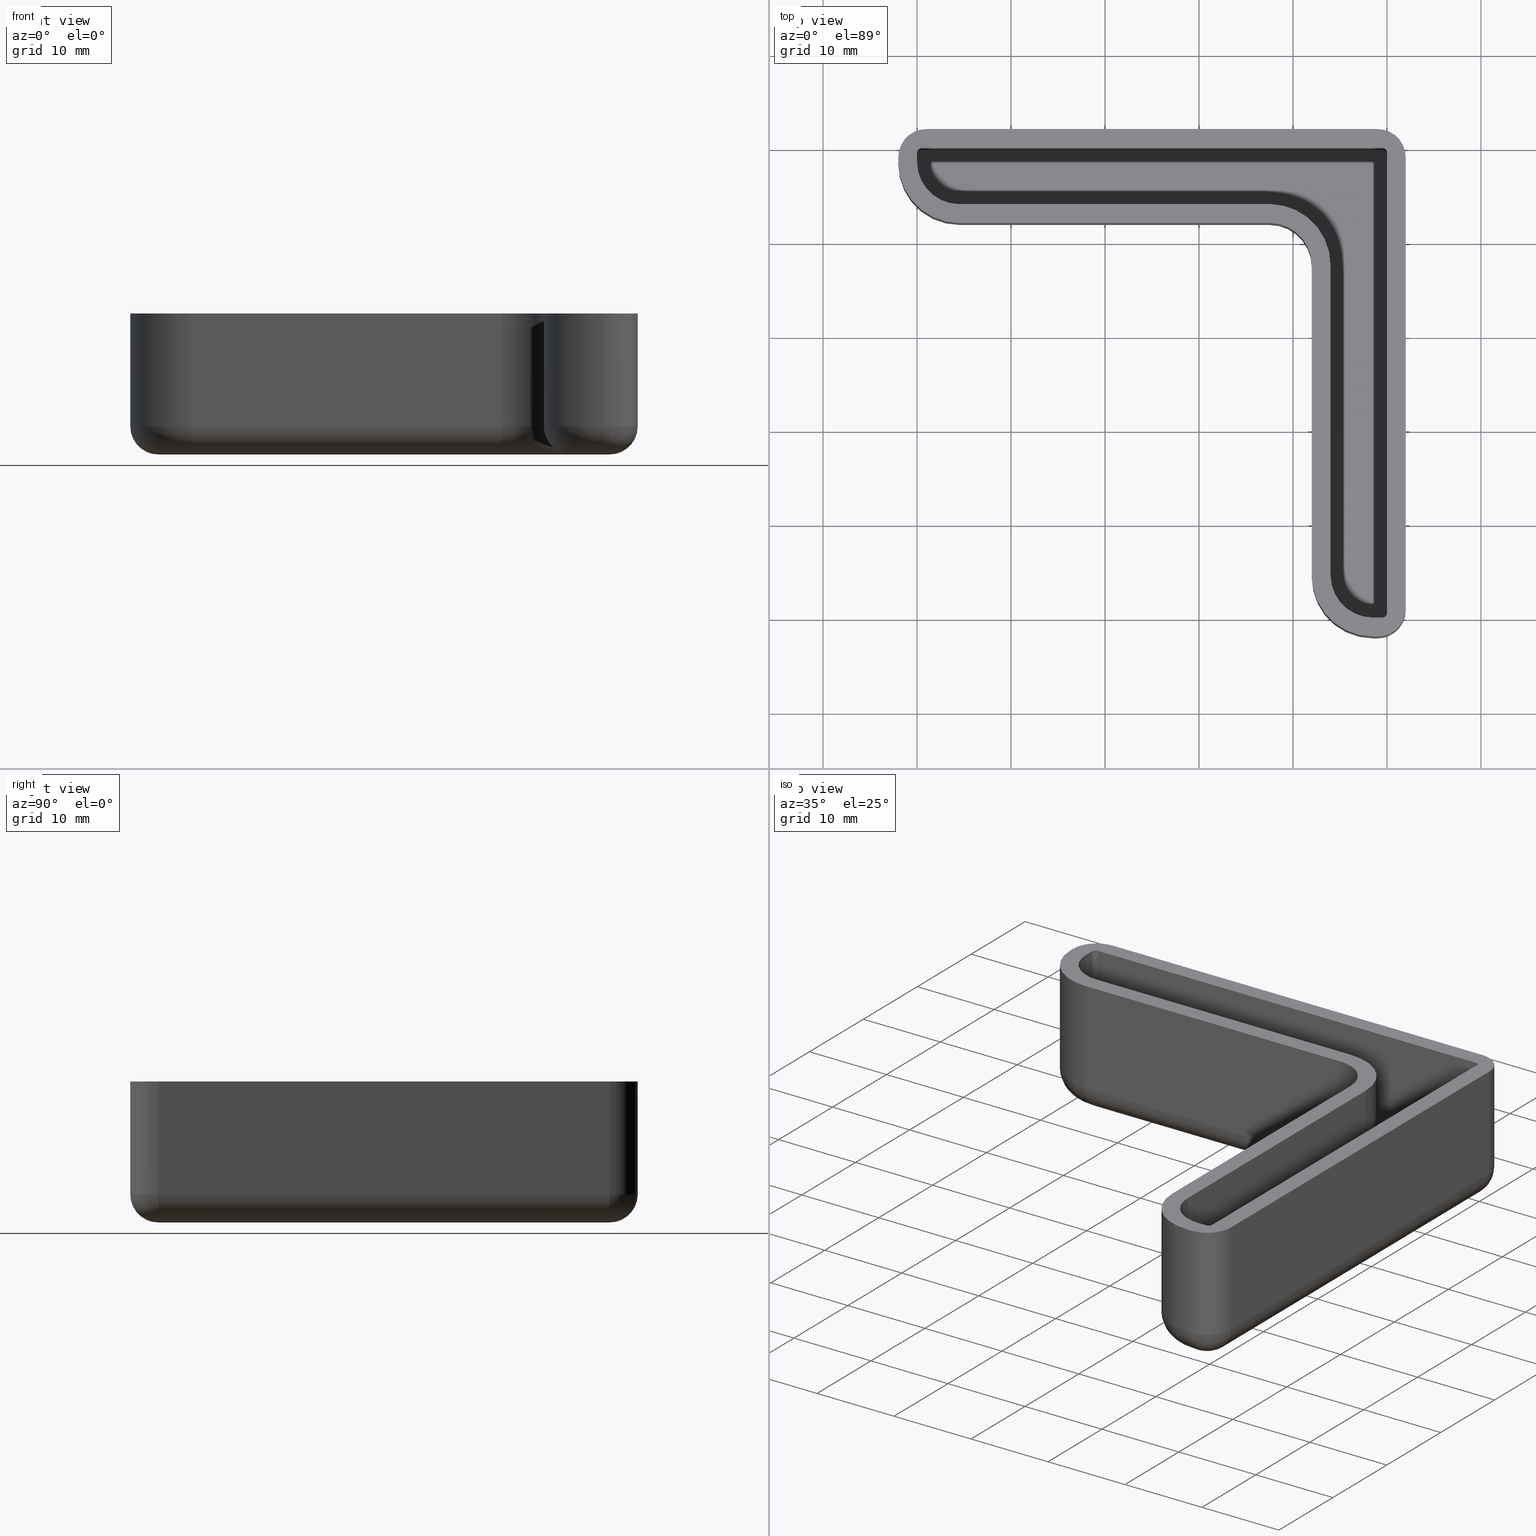
[diagram: canonical four-view strip — front | top / right | iso, engineering-drawing reading convention]
A machine part, canonical four-view strip (front | top / right | iso — engineering-drawing reading convention). The complete STEP part file that produces these views, byte-faithful:
ISO-10303-21;
HEADER;
FILE_DESCRIPTION( ( 'STEP AP203' ), '1' );
FILE_NAME( 'C:/Documents and Settings/JP/�f�X�N�g�b�v/�_�E�����[�h�pCAD�f�[�^/���ӎR�`�|/L50E/L50E.step', '2022-07-22T02:08:45', ( ' ' ), ( ' ' ), 'XStep 1.0', ' ', ' ' );
FILE_SCHEMA( ( 'CONFIG_CONTROL_DESIGN' ) );
ENDSEC;
DATA;
#1 = DESIGN_CONTEXT( '', #27, 'design' );
#2 = APPLICATION_PROTOCOL_DEFINITION( 'INTERNATIONAL STANDARD', 'config_control_design', 1994, #27 );
#3 = PRODUCT_CATEGORY_RELATIONSHIP( 'NONE', 'NONE', #28, #29 );
#4 = DATE_AND_TIME( #30, #31 );
#5 = DATE_TIME_ROLE( 'creation_date' );
#6 = DATE_TIME_ROLE( 'classification_date' );
#7 = PERSON_AND_ORGANIZATION_ROLE( 'creator' );
#8 = PERSON_AND_ORGANIZATION_ROLE( 'design_supplier' );
#9 = PERSON_AND_ORGANIZATION_ROLE( 'classification_officer' );
#10 = PERSON_AND_ORGANIZATION_ROLE( 'design_owner' );
#11 = APPROVAL_PERSON_ORGANIZATION( #32, #33, #34 );
#12 = APPROVAL_DATE_TIME( #4, #33 );
#13 = CC_DESIGN_APPROVAL( #33, ( #35, #36, #37 ) );
#14 = CC_DESIGN_DATE_AND_TIME_ASSIGNMENT( #4, #5, ( #37 ) );
#15 = CC_DESIGN_DATE_AND_TIME_ASSIGNMENT( #4, #6, ( #35 ) );
#16 = CC_DESIGN_PERSON_AND_ORGANIZATION_ASSIGNMENT( #32, #10, ( #38 ) );
#17 = CC_DESIGN_PERSON_AND_ORGANIZATION_ASSIGNMENT( #32, #7, ( #37 ) );
#18 = CC_DESIGN_PERSON_AND_ORGANIZATION_ASSIGNMENT( #32, #7, ( #36 ) );
#19 = CC_DESIGN_PERSON_AND_ORGANIZATION_ASSIGNMENT( #32, #8, ( #36 ) );
#20 = CC_DESIGN_SECURITY_CLASSIFICATION( #35, ( #36 ) );
#21 = CC_DESIGN_PERSON_AND_ORGANIZATION_ASSIGNMENT( #32, #9, ( #35 ) );
#22 = SHAPE_DEFINITION_REPRESENTATION( #39, #40 );
#23 =  ( GEOMETRIC_REPRESENTATION_CONTEXT( 3 )GLOBAL_UNCERTAINTY_ASSIGNED_CONTEXT( ( #43 ) )GLOBAL_UNIT_ASSIGNED_CONTEXT( ( #45, #46, #47 ) )REPRESENTATION_CONTEXT( 'NONE', 'WORKSPACE' ) );
#27 = APPLICATION_CONTEXT( 'CONFIGURATION CONTROLLED 3D DESIGNS OF MECHANICAL PARTS AND ASSEMBLIES' );
#28 = PRODUCT_CATEGORY( 'part', 'NONE' );
#29 = PRODUCT_RELATED_PRODUCT_CATEGORY( 'detail', ' ', ( #38 ) );
#30 = CALENDAR_DATE( 2022, 22, 6 );
#31 = LOCAL_TIME( 11, 8, 45.0000000000000, #49 );
#32 = PERSON_AND_ORGANIZATION( #50, #51 );
#33 = APPROVAL( #52, 'SOLID MODEL' );
#34 = APPROVAL_ROLE( 'APPROVED' );
#35 = SECURITY_CLASSIFICATION( '', '', #53 );
#36 = PRODUCT_DEFINITION_FORMATION_WITH_SPECIFIED_SOURCE( ' ', 'NONE', #38, .NOT_KNOWN. );
#37 = PRODUCT_DEFINITION( 'NONE', 'NONE', #36, #1 );
#38 = PRODUCT( '1', '1', 'PART-1-DESC', ( #54 ) );
#39 = PRODUCT_DEFINITION_SHAPE( 'NONE', 'NONE', #37 );
#40 = ADVANCED_BREP_SHAPE_REPRESENTATION( '1', ( #55, #56 ), #23 );
#43 = UNCERTAINTY_MEASURE_WITH_UNIT( LENGTH_MEASURE( 0.00100000000000000 ), #45, '', '' );
#45 =  ( CONVERSION_BASED_UNIT( 'MILLIMETRE', #59 )LENGTH_UNIT(  )NAMED_UNIT( #62 ) );
#46 =  ( NAMED_UNIT( #64 )PLANE_ANGLE_UNIT(  )SI_UNIT( $, .RADIAN. ) );
#47 =  ( NAMED_UNIT( #64 )SOLID_ANGLE_UNIT(  )SI_UNIT( $, .STERADIAN. ) );
#49 = COORDINATED_UNIVERSAL_TIME_OFFSET( 9, 0, .AHEAD. );
#50 = PERSON( '', 'UNSPECIFIED', $, $, $, $ );
#51 = ORGANIZATION( 'UNSPECIFIED', 'UNSPECIFIED', 'UNSPECIFIED' );
#52 = APPROVAL_STATUS( 'approved' );
#53 = SECURITY_CLASSIFICATION_LEVEL( 'unclassified' );
#54 = MECHANICAL_CONTEXT( '', #27, 'mechanical' );
#55 = MANIFOLD_SOLID_BREP( '1', #70 );
#56 = AXIS2_PLACEMENT_3D( '', #71, #72, #73 );
#59 = LENGTH_MEASURE_WITH_UNIT( LENGTH_MEASURE( 1.00000000000000 ), #74 );
#62 = DIMENSIONAL_EXPONENTS( 1.00000000000000, 0.000000000000000, 0.000000000000000, 0.000000000000000, 0.000000000000000, 0.000000000000000, 0.000000000000000 );
#64 = DIMENSIONAL_EXPONENTS( 0.000000000000000, 0.000000000000000, 0.000000000000000, 0.000000000000000, 0.000000000000000, 0.000000000000000, 0.000000000000000 );
#70 = CLOSED_SHELL( '', ( #75, #76, #77, #78, #79, #80, #81, #82, #83, #84, #85, #86, #87, #88, #89, #90, #91, #92, #93, #94, #95, #96, #97, #98, #99, #100, #101, #102, #103, #104, #105, #106, #107, #108, #109, #110, #111, #112, #113 ) );
#71 = CARTESIAN_POINT( '', ( 0.000000000000000, 0.000000000000000, 0.000000000000000 ) );
#72 = DIRECTION( '', ( 0.000000000000000, 0.000000000000000, 1.00000000000000 ) );
#73 = DIRECTION( '', ( 1.00000000000000, 0.000000000000000, 0.000000000000000 ) );
#74 =  ( NAMED_UNIT( #62 )LENGTH_UNIT(  )SI_UNIT( .MILLI., .METRE. ) );
#75 = ADVANCED_FACE( '', ( #115, #116 ), #117, .T. );
#76 = ADVANCED_FACE( '', ( #118 ), #119, .T. );
#77 = ADVANCED_FACE( '', ( #120 ), #121, .F. );
#78 = ADVANCED_FACE( '', ( #122 ), #123, .T. );
#79 = ADVANCED_FACE( '', ( #124 ), #125, .T. );
#80 = ADVANCED_FACE( '', ( #126 ), #127, .T. );
#81 = ADVANCED_FACE( '', ( #128 ), #129, .T. );
#82 = ADVANCED_FACE( '', ( #130 ), #131, .T. );
#83 = ADVANCED_FACE( '', ( #132 ), #133, .T. );
#84 = ADVANCED_FACE( '', ( #134 ), #135, .T. );
#85 = ADVANCED_FACE( '', ( #136 ), #137, .T. );
#86 = ADVANCED_FACE( '', ( #138 ), #139, .T. );
#87 = ADVANCED_FACE( '', ( #140 ), #141, .F. );
#88 = ADVANCED_FACE( '', ( #142 ), #143, .T. );
#89 = ADVANCED_FACE( '', ( #144 ), #145, .T. );
#90 = ADVANCED_FACE( '', ( #146 ), #147, .T. );
#91 = ADVANCED_FACE( '', ( #148 ), #149, .F. );
#92 = ADVANCED_FACE( '', ( #150 ), #151, .T. );
#93 = ADVANCED_FACE( '', ( #152 ), #153, .T. );
#94 = ADVANCED_FACE( '', ( #154 ), #155, .T. );
#95 = ADVANCED_FACE( '', ( #156 ), #157, .T. );
#96 = ADVANCED_FACE( '', ( #158 ), #159, .T. );
#97 = ADVANCED_FACE( '', ( #160 ), #161, .T. );
#98 = ADVANCED_FACE( '', ( #162 ), #163, .T. );
#99 = ADVANCED_FACE( '', ( #164 ), #165, .T. );
#100 = ADVANCED_FACE( '', ( #166 ), #167, .T. );
#101 = ADVANCED_FACE( '', ( #168 ), #169, .T. );
#102 = ADVANCED_FACE( '', ( #170 ), #171, .T. );
#103 = ADVANCED_FACE( '', ( #172 ), #173, .T. );
#104 = ADVANCED_FACE( '', ( #174 ), #175, .T. );
#105 = ADVANCED_FACE( '', ( #176 ), #177, .T. );
#106 = ADVANCED_FACE( '', ( #178 ), #179, .F. );
#107 = ADVANCED_FACE( '', ( #180 ), #181, .T. );
#108 = ADVANCED_FACE( '', ( #182 ), #183, .T. );
#109 = ADVANCED_FACE( '', ( #184 ), #185, .F. );
#110 = ADVANCED_FACE( '', ( #186 ), #187, .T. );
#111 = ADVANCED_FACE( '', ( #188 ), #189, .F. );
#112 = ADVANCED_FACE( '', ( #190 ), #191, .T. );
#113 = ADVANCED_FACE( '', ( #192 ), #193, .F. );
#115 = FACE_OUTER_BOUND( '', #194, .T. );
#116 = FACE_BOUND( '', #195, .T. );
#117 = PLANE( '', #196 );
#118 = FACE_OUTER_BOUND( '', #197, .T. );
#119 = CYLINDRICAL_SURFACE( '', #198, 3.00000000000000 );
#120 = FACE_OUTER_BOUND( '', #199, .T. );
#121 = CYLINDRICAL_SURFACE( '', #200, 0.500000000000000 );
#122 = FACE_OUTER_BOUND( '', #201, .T. );
#123 = PLANE( '', #202 );
#124 = FACE_OUTER_BOUND( '', #203, .T. );
#125 = PLANE( '', #204 );
#126 = FACE_OUTER_BOUND( '', #205, .T. );
#127 = PLANE( '', #206 );
#128 = FACE_OUTER_BOUND( '', #207, .T. );
#129 = CYLINDRICAL_SURFACE( '', #208, 3.00000000000000 );
#130 = FACE_OUTER_BOUND( '', #209, .T. );
#131 = PLANE( '', #210 );
#132 = FACE_OUTER_BOUND( '', #211, .T. );
#133 = CYLINDRICAL_SURFACE( '', #212, 3.00000000000000 );
#134 = FACE_OUTER_BOUND( '', #213, .T. );
#135 = PLANE( '', #214 );
#136 = FACE_OUTER_BOUND( '', #215, .T. );
#137 = CYLINDRICAL_SURFACE( '', #216, 6.50000000000000 );
#138 = FACE_OUTER_BOUND( '', #217, .T. );
#139 = PLANE( '', #218 );
#140 = FACE_OUTER_BOUND( '', #219, .T. );
#141 = CYLINDRICAL_SURFACE( '', #220, 4.50000000000000 );
#142 = FACE_OUTER_BOUND( '', #221, .T. );
#143 = PLANE( '', #222 );
#144 = FACE_OUTER_BOUND( '', #223, .T. );
#145 = CYLINDRICAL_SURFACE( '', #224, 6.50000000000000 );
#146 = FACE_OUTER_BOUND( '', #225, .T. );
#147 = PLANE( '', #226 );
#148 = FACE_OUTER_BOUND( '', #227, .T. );
#149 = PLANE( '', #228 );
#150 = FACE_OUTER_BOUND( '', #229, .T. );
#151 = CYLINDRICAL_SURFACE( '', #230, 3.00000000000000 );
#152 = FACE_OUTER_BOUND( '', #231, .T. );
#153 = SPHERICAL_SURFACE( '', #232, 3.00000000000000 );
#154 = FACE_OUTER_BOUND( '', #233, .T. );
#155 = SPHERICAL_SURFACE( '', #234, 3.00000000000000 );
#156 = FACE_OUTER_BOUND( '', #235, .T. );
#157 = CYLINDRICAL_SURFACE( '', #236, 3.00000000000000 );
#158 = FACE_OUTER_BOUND( '', #237, .T. );
#159 = CYLINDRICAL_SURFACE( '', #238, 3.00000000000000 );
#160 = FACE_OUTER_BOUND( '', #239, .T. );
#161 = SPHERICAL_SURFACE( '', #240, 3.00000000000000 );
#162 = FACE_OUTER_BOUND( '', #241, .T. );
#163 = TOROIDAL_SURFACE( '', #242, 3.50000000000000, 3.00000000000000 );
#164 = FACE_OUTER_BOUND( '', #243, .T. );
#165 = CYLINDRICAL_SURFACE( '', #244, 3.00000000000000 );
#166 = FACE_OUTER_BOUND( '', #245, .T. );
#167 = CYLINDRICAL_SURFACE( '', #246, 3.00000000000000 );
#168 = FACE_OUTER_BOUND( '', #247, .T. );
#169 = TOROIDAL_SURFACE( '', #248, 3.50000000000000, 3.00000000000000 );
#170 = FACE_OUTER_BOUND( '', #249, .T. );
#171 = TOROIDAL_SURFACE( '', #250, 7.50000000000000, 3.00000000000000 );
#172 = FACE_OUTER_BOUND( '', #251, .T. );
#173 = CYLINDRICAL_SURFACE( '', #252, 3.00000000000000 );
#174 = FACE_OUTER_BOUND( '', #253, .T. );
#175 = PLANE( '', #254 );
#176 = FACE_OUTER_BOUND( '', #255, .T. );
#177 = PLANE( '', #256 );
#178 = FACE_OUTER_BOUND( '', #257, .T. );
#179 = CYLINDRICAL_SURFACE( '', #258, 4.50000000000000 );
#180 = FACE_OUTER_BOUND( '', #259, .T. );
#181 = CYLINDRICAL_SURFACE( '', #260, 6.50000000000000 );
#182 = FACE_OUTER_BOUND( '', #261, .T. );
#183 = PLANE( '', #262 );
#184 = FACE_OUTER_BOUND( '', #263, .T. );
#185 = CYLINDRICAL_SURFACE( '', #264, 4.50000000000000 );
#186 = FACE_OUTER_BOUND( '', #265, .T. );
#187 = PLANE( '', #266 );
#188 = FACE_OUTER_BOUND( '', #267, .T. );
#189 = CYLINDRICAL_SURFACE( '', #268, 0.500000000000000 );
#190 = FACE_OUTER_BOUND( '', #269, .T. );
#191 = PLANE( '', #270 );
#192 = FACE_OUTER_BOUND( '', #271, .T. );
#193 = CYLINDRICAL_SURFACE( '', #272, 0.500000000000000 );
#194 = EDGE_LOOP( '', ( #273, #274, #275, #276, #277, #278, #279, #280, #281, #282, #283, #284 ) );
#195 = EDGE_LOOP( '', ( #285, #286, #287, #288, #289, #290, #291, #292, #293, #294, #295, #296 ) );
#196 = AXIS2_PLACEMENT_3D( '', #297, #298, #299 );
#197 = EDGE_LOOP( '', ( #300, #301, #302, #303 ) );
#198 = AXIS2_PLACEMENT_3D( '', #304, #305, #306 );
#199 = EDGE_LOOP( '', ( #307, #308, #309, #310 ) );
#200 = AXIS2_PLACEMENT_3D( '', #311, #312, #313 );
#201 = EDGE_LOOP( '', ( #314, #315, #316, #317 ) );
#202 = AXIS2_PLACEMENT_3D( '', #318, #319, #320 );
#203 = EDGE_LOOP( '', ( #321, #322, #323, #324, #325, #326, #327, #328, #329, #330, #331, #332 ) );
#204 = AXIS2_PLACEMENT_3D( '', #333, #334, #335 );
#205 = EDGE_LOOP( '', ( #336, #337, #338, #339 ) );
#206 = AXIS2_PLACEMENT_3D( '', #340, #341, #342 );
#207 = EDGE_LOOP( '', ( #343, #344, #345, #346 ) );
#208 = AXIS2_PLACEMENT_3D( '', #347, #348, #349 );
#209 = EDGE_LOOP( '', ( #350, #351, #352, #353 ) );
#210 = AXIS2_PLACEMENT_3D( '', #354, #355, #356 );
#211 = EDGE_LOOP( '', ( #357, #358, #359, #360 ) );
#212 = AXIS2_PLACEMENT_3D( '', #361, #362, #363 );
#213 = EDGE_LOOP( '', ( #364, #365, #366, #367 ) );
#214 = AXIS2_PLACEMENT_3D( '', #368, #369, #370 );
#215 = EDGE_LOOP( '', ( #371, #372, #373, #374 ) );
#216 = AXIS2_PLACEMENT_3D( '', #375, #376, #377 );
#217 = EDGE_LOOP( '', ( #378, #379, #380, #381 ) );
#218 = AXIS2_PLACEMENT_3D( '', #382, #383, #384 );
#219 = EDGE_LOOP( '', ( #385, #386, #387, #388 ) );
#220 = AXIS2_PLACEMENT_3D( '', #389, #390, #391 );
#221 = EDGE_LOOP( '', ( #392, #393, #394, #395 ) );
#222 = AXIS2_PLACEMENT_3D( '', #396, #397, #398 );
#223 = EDGE_LOOP( '', ( #399, #400, #401, #402 ) );
#224 = AXIS2_PLACEMENT_3D( '', #403, #404, #405 );
#225 = EDGE_LOOP( '', ( #406, #407, #408, #409 ) );
#226 = AXIS2_PLACEMENT_3D( '', #410, #411, #412 );
#227 = EDGE_LOOP( '', ( #413, #414, #415, #416, #417, #418, #419, #420, #421 ) );
#228 = AXIS2_PLACEMENT_3D( '', #422, #423, #424 );
#229 = EDGE_LOOP( '', ( #425, #426, #427, #428 ) );
#230 = AXIS2_PLACEMENT_3D( '', #429, #430, #431 );
#231 = EDGE_LOOP( '', ( #432, #433, #434 ) );
#232 = AXIS2_PLACEMENT_3D( '', #435, #436, #437 );
#233 = EDGE_LOOP( '', ( #438, #439, #440 ) );
#234 = AXIS2_PLACEMENT_3D( '', #441, #442, #443 );
#235 = EDGE_LOOP( '', ( #444, #445, #446, #447 ) );
#236 = AXIS2_PLACEMENT_3D( '', #448, #449, #450 );
#237 = EDGE_LOOP( '', ( #451, #452, #453, #454 ) );
#238 = AXIS2_PLACEMENT_3D( '', #455, #456, #457 );
#239 = EDGE_LOOP( '', ( #458, #459, #460 ) );
#240 = AXIS2_PLACEMENT_3D( '', #461, #462, #463 );
#241 = EDGE_LOOP( '', ( #464, #465, #466, #467 ) );
#242 = AXIS2_PLACEMENT_3D( '', #468, #469, #470 );
#243 = EDGE_LOOP( '', ( #471, #472, #473, #474 ) );
#244 = AXIS2_PLACEMENT_3D( '', #475, #476, #477 );
#245 = EDGE_LOOP( '', ( #478, #479, #480, #481 ) );
#246 = AXIS2_PLACEMENT_3D( '', #482, #483, #484 );
#247 = EDGE_LOOP( '', ( #485, #486, #487, #488 ) );
#248 = AXIS2_PLACEMENT_3D( '', #489, #490, #491 );
#249 = EDGE_LOOP( '', ( #492, #493, #494, #495 ) );
#250 = AXIS2_PLACEMENT_3D( '', #496, #497, #498 );
#251 = EDGE_LOOP( '', ( #499, #500, #501, #502 ) );
#252 = AXIS2_PLACEMENT_3D( '', #503, #504, #505 );
#253 = EDGE_LOOP( '', ( #506, #507, #508, #509 ) );
#254 = AXIS2_PLACEMENT_3D( '', #510, #511, #512 );
#255 = EDGE_LOOP( '', ( #513, #514, #515, #516 ) );
#256 = AXIS2_PLACEMENT_3D( '', #517, #518, #519 );
#257 = EDGE_LOOP( '', ( #520, #521, #522, #523 ) );
#258 = AXIS2_PLACEMENT_3D( '', #524, #525, #526 );
#259 = EDGE_LOOP( '', ( #527, #528, #529, #530 ) );
#260 = AXIS2_PLACEMENT_3D( '', #531, #532, #533 );
#261 = EDGE_LOOP( '', ( #534, #535, #536, #537 ) );
#262 = AXIS2_PLACEMENT_3D( '', #538, #539, #540 );
#263 = EDGE_LOOP( '', ( #541, #542, #543, #544 ) );
#264 = AXIS2_PLACEMENT_3D( '', #545, #546, #547 );
#265 = EDGE_LOOP( '', ( #548, #549, #550, #551 ) );
#266 = AXIS2_PLACEMENT_3D( '', #552, #553, #554 );
#267 = EDGE_LOOP( '', ( #555, #556, #557, #558 ) );
#268 = AXIS2_PLACEMENT_3D( '', #559, #560, #561 );
#269 = EDGE_LOOP( '', ( #562, #563, #564, #565 ) );
#270 = AXIS2_PLACEMENT_3D( '', #566, #567, #568 );
#271 = EDGE_LOOP( '', ( #569, #570, #571, #572 ) );
#272 = AXIS2_PLACEMENT_3D( '', #573, #574, #575 );
#273 = ORIENTED_EDGE( '', *, *, #576, .T. );
#274 = ORIENTED_EDGE( '', *, *, #577, .T. );
#275 = ORIENTED_EDGE( '', *, *, #578, .T. );
#276 = ORIENTED_EDGE( '', *, *, #579, .T. );
#277 = ORIENTED_EDGE( '', *, *, #580, .T. );
#278 = ORIENTED_EDGE( '', *, *, #581, .T. );
#279 = ORIENTED_EDGE( '', *, *, #582, .T. );
#280 = ORIENTED_EDGE( '', *, *, #583, .T. );
#281 = ORIENTED_EDGE( '', *, *, #584, .T. );
#282 = ORIENTED_EDGE( '', *, *, #585, .T. );
#283 = ORIENTED_EDGE( '', *, *, #586, .T. );
#284 = ORIENTED_EDGE( '', *, *, #587, .T. );
#285 = ORIENTED_EDGE( '', *, *, #588, .T. );
#286 = ORIENTED_EDGE( '', *, *, #589, .T. );
#287 = ORIENTED_EDGE( '', *, *, #590, .T. );
#288 = ORIENTED_EDGE( '', *, *, #591, .T. );
#289 = ORIENTED_EDGE( '', *, *, #592, .T. );
#290 = ORIENTED_EDGE( '', *, *, #593, .T. );
#291 = ORIENTED_EDGE( '', *, *, #594, .T. );
#292 = ORIENTED_EDGE( '', *, *, #595, .T. );
#293 = ORIENTED_EDGE( '', *, *, #596, .T. );
#294 = ORIENTED_EDGE( '', *, *, #597, .T. );
#295 = ORIENTED_EDGE( '', *, *, #598, .T. );
#296 = ORIENTED_EDGE( '', *, *, #599, .T. );
#297 = CARTESIAN_POINT( '', ( -1.00000000000000, -49.0000000000000, 0.000000000000000 ) );
#298 = DIRECTION( '', ( 0.000000000000000, 0.000000000000000, 1.00000000000000 ) );
#299 = DIRECTION( '', ( 1.00000000000000, -1.83690953073357E-016, 0.000000000000000 ) );
#300 = ORIENTED_EDGE( '', *, *, #600, .F. );
#301 = ORIENTED_EDGE( '', *, *, #601, .T. );
#302 = ORIENTED_EDGE( '', *, *, #602, .T. );
#303 = ORIENTED_EDGE( '', *, *, #576, .F. );
#304 = CARTESIAN_POINT( '', ( -1.00000000000000, -49.0000000000000, -15.0000000000000 ) );
#305 = DIRECTION( '', ( 0.000000000000000, 0.000000000000000, -1.00000000000000 ) );
#306 = DIRECTION( '', ( 1.00000000000000, -1.83690953073357E-016, 0.000000000000000 ) );
#307 = ORIENTED_EDGE( '', *, *, #603, .T. );
#308 = ORIENTED_EDGE( '', *, *, #604, .F. );
#309 = ORIENTED_EDGE( '', *, *, #605, .F. );
#310 = ORIENTED_EDGE( '', *, *, #589, .F. );
#311 = CARTESIAN_POINT( '', ( -0.500000000000006, -49.5000000000000, 30.0000000000000 ) );
#312 = DIRECTION( '', ( 0.000000000000000, 0.000000000000000, 1.00000000000000 ) );
#313 = DIRECTION( '', ( -1.00000000000000, 1.83690953073357E-016, 0.000000000000000 ) );
#314 = ORIENTED_EDGE( '', *, *, #606, .T. );
#315 = ORIENTED_EDGE( '', *, *, #607, .F. );
#316 = ORIENTED_EDGE( '', *, *, #603, .F. );
#317 = ORIENTED_EDGE( '', *, *, #588, .F. );
#318 = CARTESIAN_POINT( '', ( -9.09270217713115E-015, -49.5000000000000, 30.0000000000000 ) );
#319 = DIRECTION( '', ( -1.00000000000000, 1.83690953073357E-016, 0.000000000000000 ) );
#320 = DIRECTION( '', ( -1.83690953073357E-016, -1.00000000000000, 0.000000000000000 ) );
#321 = ORIENTED_EDGE( '', *, *, #604, .T. );
#322 = ORIENTED_EDGE( '', *, *, #607, .T. );
#323 = ORIENTED_EDGE( '', *, *, #608, .T. );
#324 = ORIENTED_EDGE( '', *, *, #609, .T. );
#325 = ORIENTED_EDGE( '', *, *, #610, .T. );
#326 = ORIENTED_EDGE( '', *, *, #611, .T. );
#327 = ORIENTED_EDGE( '', *, *, #612, .T. );
#328 = ORIENTED_EDGE( '', *, *, #613, .T. );
#329 = ORIENTED_EDGE( '', *, *, #614, .T. );
#330 = ORIENTED_EDGE( '', *, *, #615, .T. );
#331 = ORIENTED_EDGE( '', *, *, #616, .T. );
#332 = ORIENTED_EDGE( '', *, *, #617, .T. );
#333 = CARTESIAN_POINT( '', ( -0.500000000000006, -49.5000000000000, -13.0000000000000 ) );
#334 = DIRECTION( '', ( 0.000000000000000, 0.000000000000000, 1.00000000000000 ) );
#335 = DIRECTION( '', ( 1.00000000000000, -1.83690953073357E-016, 0.000000000000000 ) );
#336 = ORIENTED_EDGE( '', *, *, #602, .F. );
#337 = ORIENTED_EDGE( '', *, *, #618, .T. );
#338 = ORIENTED_EDGE( '', *, *, #619, .T. );
#339 = ORIENTED_EDGE( '', *, *, #577, .F. );
#340 = CARTESIAN_POINT( '', ( 1.99999999999999, -49.0000000000000, -15.0000000000000 ) );
#341 = DIRECTION( '', ( 1.00000000000000, -1.83690953073357E-016, 0.000000000000000 ) );
#342 = DIRECTION( '', ( -1.83690953073357E-016, -1.00000000000000, 0.000000000000000 ) );
#343 = ORIENTED_EDGE( '', *, *, #619, .F. );
#344 = ORIENTED_EDGE( '', *, *, #620, .T. );
#345 = ORIENTED_EDGE( '', *, *, #621, .T. );
#346 = ORIENTED_EDGE( '', *, *, #578, .F. );
#347 = CARTESIAN_POINT( '', ( -0.999999999999998, -1.00000000000000, -15.0000000000000 ) );
#348 = DIRECTION( '', ( 0.000000000000000, 0.000000000000000, -1.00000000000000 ) );
#349 = DIRECTION( '', ( 1.00000000000000, -1.83690953073357E-016, 0.000000000000000 ) );
#350 = ORIENTED_EDGE( '', *, *, #621, .F. );
#351 = ORIENTED_EDGE( '', *, *, #622, .T. );
#352 = ORIENTED_EDGE( '', *, *, #623, .T. );
#353 = ORIENTED_EDGE( '', *, *, #579, .F. );
#354 = CARTESIAN_POINT( '', ( -1.00000000000000, 2.00000000000000, -15.0000000000000 ) );
#355 = DIRECTION( '', ( 1.22460635382238E-016, 1.00000000000000, 0.000000000000000 ) );
#356 = DIRECTION( '', ( 1.00000000000000, -1.22460635382238E-016, 0.000000000000000 ) );
#357 = ORIENTED_EDGE( '', *, *, #623, .F. );
#358 = ORIENTED_EDGE( '', *, *, #624, .T. );
#359 = ORIENTED_EDGE( '', *, *, #625, .T. );
#360 = ORIENTED_EDGE( '', *, *, #580, .F. );
#361 = CARTESIAN_POINT( '', ( -49.0000000000000, -0.999999999999995, -15.0000000000000 ) );
#362 = DIRECTION( '', ( 0.000000000000000, 0.000000000000000, -1.00000000000000 ) );
#363 = DIRECTION( '', ( 1.00000000000000, -1.83690953073357E-016, 0.000000000000000 ) );
#364 = ORIENTED_EDGE( '', *, *, #625, .F. );
#365 = ORIENTED_EDGE( '', *, *, #626, .T. );
#366 = ORIENTED_EDGE( '', *, *, #627, .T. );
#367 = ORIENTED_EDGE( '', *, *, #581, .F. );
#368 = CARTESIAN_POINT( '', ( -52.0000000000000, -0.999999999999995, -15.0000000000000 ) );
#369 = DIRECTION( '', ( -1.00000000000000, 1.91849574421310E-016, 0.000000000000000 ) );
#370 = DIRECTION( '', ( 1.91849574421310E-016, 1.00000000000000, 0.000000000000000 ) );
#371 = ORIENTED_EDGE( '', *, *, #627, .F. );
#372 = ORIENTED_EDGE( '', *, *, #628, .T. );
#373 = ORIENTED_EDGE( '', *, *, #629, .T. );
#374 = ORIENTED_EDGE( '', *, *, #582, .F. );
#375 = CARTESIAN_POINT( '', ( -45.5000000000000, -1.50000000000000, -15.0000000000000 ) );
#376 = DIRECTION( '', ( 0.000000000000000, 0.000000000000000, -1.00000000000000 ) );
#377 = DIRECTION( '', ( 1.00000000000000, -1.83690953073357E-016, 0.000000000000000 ) );
#378 = ORIENTED_EDGE( '', *, *, #629, .F. );
#379 = ORIENTED_EDGE( '', *, *, #630, .T. );
#380 = ORIENTED_EDGE( '', *, *, #631, .T. );
#381 = ORIENTED_EDGE( '', *, *, #583, .F. );
#382 = CARTESIAN_POINT( '', ( -45.5000000000000, -8.00000000000001, -15.0000000000000 ) );
#383 = DIRECTION( '', ( -1.22460635382238E-016, -1.00000000000000, 0.000000000000000 ) );
#384 = DIRECTION( '', ( -1.00000000000000, 1.22460635382238E-016, 0.000000000000000 ) );
#385 = ORIENTED_EDGE( '', *, *, #631, .F. );
#386 = ORIENTED_EDGE( '', *, *, #632, .T. );
#387 = ORIENTED_EDGE( '', *, *, #633, .T. );
#388 = ORIENTED_EDGE( '', *, *, #584, .F. );
#389 = CARTESIAN_POINT( '', ( -12.5000000000000, -12.5000000000000, -15.0000000000000 ) );
#390 = DIRECTION( '', ( 0.000000000000000, 0.000000000000000, -1.00000000000000 ) );
#391 = DIRECTION( '', ( 1.00000000000000, -1.83690953073357E-016, 0.000000000000000 ) );
#392 = ORIENTED_EDGE( '', *, *, #633, .F. );
#393 = ORIENTED_EDGE( '', *, *, #634, .T. );
#394 = ORIENTED_EDGE( '', *, *, #635, .T. );
#395 = ORIENTED_EDGE( '', *, *, #585, .F. );
#396 = CARTESIAN_POINT( '', ( -7.99999999999999, -12.5000000000000, -15.0000000000000 ) );
#397 = DIRECTION( '', ( -1.00000000000000, 1.83175957041426E-016, 0.000000000000000 ) );
#398 = DIRECTION( '', ( 1.83175957041426E-016, 1.00000000000000, 0.000000000000000 ) );
#399 = ORIENTED_EDGE( '', *, *, #635, .F. );
#400 = ORIENTED_EDGE( '', *, *, #636, .T. );
#401 = ORIENTED_EDGE( '', *, *, #637, .T. );
#402 = ORIENTED_EDGE( '', *, *, #586, .F. );
#403 = CARTESIAN_POINT( '', ( -1.50000000000001, -45.5000000000000, -15.0000000000000 ) );
#404 = DIRECTION( '', ( 0.000000000000000, 0.000000000000000, -1.00000000000000 ) );
#405 = DIRECTION( '', ( 1.00000000000000, -1.83690953073357E-016, 0.000000000000000 ) );
#406 = ORIENTED_EDGE( '', *, *, #637, .F. );
#407 = ORIENTED_EDGE( '', *, *, #638, .T. );
#408 = ORIENTED_EDGE( '', *, *, #600, .T. );
#409 = ORIENTED_EDGE( '', *, *, #587, .F. );
#410 = CARTESIAN_POINT( '', ( -1.50000000000001, -52.0000000000000, -15.0000000000000 ) );
#411 = DIRECTION( '', ( -1.22460635382238E-016, -1.00000000000000, 0.000000000000000 ) );
#412 = DIRECTION( '', ( -1.00000000000000, 1.22460635382238E-016, 0.000000000000000 ) );
#413 = ORIENTED_EDGE( '', *, *, #639, .T. );
#414 = ORIENTED_EDGE( '', *, *, #640, .T. );
#415 = ORIENTED_EDGE( '', *, *, #641, .T. );
#416 = ORIENTED_EDGE( '', *, *, #642, .T. );
#417 = ORIENTED_EDGE( '', *, *, #643, .T. );
#418 = ORIENTED_EDGE( '', *, *, #644, .T. );
#419 = ORIENTED_EDGE( '', *, *, #645, .T. );
#420 = ORIENTED_EDGE( '', *, *, #646, .T. );
#421 = ORIENTED_EDGE( '', *, *, #647, .T. );
#422 = CARTESIAN_POINT( '', ( -1.00000000000000, -49.0000000000000, -15.0000000000000 ) );
#423 = DIRECTION( '', ( 0.000000000000000, 0.000000000000000, 1.00000000000000 ) );
#424 = DIRECTION( '', ( 1.00000000000000, -1.83690953073357E-016, 0.000000000000000 ) );
#425 = ORIENTED_EDGE( '', *, *, #648, .T. );
#426 = ORIENTED_EDGE( '', *, *, #640, .F. );
#427 = ORIENTED_EDGE( '', *, *, #649, .T. );
#428 = ORIENTED_EDGE( '', *, *, #618, .F. );
#429 = CARTESIAN_POINT( '', ( -1.00000000000001, -49.0000000000000, -12.0000000000000 ) );
#430 = DIRECTION( '', ( 1.83690953073357E-016, 1.00000000000000, 0.000000000000000 ) );
#431 = DIRECTION( '', ( 1.00000000000000, -1.83690953073357E-016, 0.000000000000000 ) );
#432 = ORIENTED_EDGE( '', *, *, #650, .T. );
#433 = ORIENTED_EDGE( '', *, *, #620, .F. );
#434 = ORIENTED_EDGE( '', *, *, #649, .F. );
#435 = CARTESIAN_POINT( '', ( -0.999999999999998, -1.00000000000000, -12.0000000000000 ) );
#436 = DIRECTION( '', ( 0.000000000000000, 0.000000000000000, 1.00000000000000 ) );
#437 = DIRECTION( '', ( -1.00000000000000, 1.22460635382238E-016, 0.000000000000000 ) );
#438 = ORIENTED_EDGE( '', *, *, #601, .F. );
#439 = ORIENTED_EDGE( '', *, *, #651, .T. );
#440 = ORIENTED_EDGE( '', *, *, #648, .F. );
#441 = CARTESIAN_POINT( '', ( -1.00000000000000, -49.0000000000000, -12.0000000000000 ) );
#442 = DIRECTION( '', ( 0.000000000000000, 0.000000000000000, 1.00000000000000 ) );
#443 = DIRECTION( '', ( -1.00000000000000, 1.22460635382238E-016, 0.000000000000000 ) );
#444 = ORIENTED_EDGE( '', *, *, #652, .T. );
#445 = ORIENTED_EDGE( '', *, *, #622, .F. );
#446 = ORIENTED_EDGE( '', *, *, #650, .F. );
#447 = ORIENTED_EDGE( '', *, *, #639, .F. );
#448 = CARTESIAN_POINT( '', ( -1.00000000000000, -0.999999999999999, -12.0000000000000 ) );
#449 = DIRECTION( '', ( -1.00000000000000, 1.22460635382238E-016, 0.000000000000000 ) );
#450 = DIRECTION( '', ( 0.000000000000000, 0.000000000000000, 1.00000000000000 ) );
#451 = ORIENTED_EDGE( '', *, *, #653, .T. );
#452 = ORIENTED_EDGE( '', *, *, #641, .F. );
#453 = ORIENTED_EDGE( '', *, *, #651, .F. );
#454 = ORIENTED_EDGE( '', *, *, #638, .F. );
#455 = CARTESIAN_POINT( '', ( -1.50000000000001, -49.0000000000000, -12.0000000000000 ) );
#456 = DIRECTION( '', ( 1.00000000000000, -1.22460635382238E-016, 0.000000000000000 ) );
#457 = DIRECTION( '', ( 0.000000000000000, 0.000000000000000, -1.00000000000000 ) );
#458 = ORIENTED_EDGE( '', *, *, #654, .T. );
#459 = ORIENTED_EDGE( '', *, *, #624, .F. );
#460 = ORIENTED_EDGE( '', *, *, #652, .F. );
#461 = CARTESIAN_POINT( '', ( -49.0000000000000, -0.999999999999995, -12.0000000000000 ) );
#462 = DIRECTION( '', ( 0.000000000000000, 0.000000000000000, 1.00000000000000 ) );
#463 = DIRECTION( '', ( -1.00000000000000, 1.22460635382238E-016, 0.000000000000000 ) );
#464 = ORIENTED_EDGE( '', *, *, #655, .T. );
#465 = ORIENTED_EDGE( '', *, *, #642, .F. );
#466 = ORIENTED_EDGE( '', *, *, #653, .F. );
#467 = ORIENTED_EDGE( '', *, *, #636, .F. );
#468 = CARTESIAN_POINT( '', ( -1.50000000000001, -45.5000000000000, -12.0000000000000 ) );
#469 = DIRECTION( '', ( 0.000000000000000, 0.000000000000000, 1.00000000000000 ) );
#470 = DIRECTION( '', ( -1.00000000000000, 1.22460635382238E-016, 0.000000000000000 ) );
#471 = ORIENTED_EDGE( '', *, *, #656, .T. );
#472 = ORIENTED_EDGE( '', *, *, #626, .F. );
#473 = ORIENTED_EDGE( '', *, *, #654, .F. );
#474 = ORIENTED_EDGE( '', *, *, #647, .F. );
#475 = CARTESIAN_POINT( '', ( -49.0000000000000, -0.999999999999995, -12.0000000000000 ) );
#476 = DIRECTION( '', ( -1.91849574421310E-016, -1.00000000000000, 0.000000000000000 ) );
#477 = DIRECTION( '', ( -1.00000000000000, 1.91849574421310E-016, 0.000000000000000 ) );
#478 = ORIENTED_EDGE( '', *, *, #657, .T. );
#479 = ORIENTED_EDGE( '', *, *, #643, .F. );
#480 = ORIENTED_EDGE( '', *, *, #655, .F. );
#481 = ORIENTED_EDGE( '', *, *, #634, .F. );
#482 = CARTESIAN_POINT( '', ( -5.00000000000000, -12.5000000000000, -12.0000000000000 ) );
#483 = DIRECTION( '', ( -1.83175957041426E-016, -1.00000000000000, 0.000000000000000 ) );
#484 = DIRECTION( '', ( -1.00000000000000, 1.83175957041426E-016, 0.000000000000000 ) );
#485 = ORIENTED_EDGE( '', *, *, #658, .T. );
#486 = ORIENTED_EDGE( '', *, *, #628, .F. );
#487 = ORIENTED_EDGE( '', *, *, #656, .F. );
#488 = ORIENTED_EDGE( '', *, *, #646, .F. );
#489 = CARTESIAN_POINT( '', ( -45.5000000000000, -1.50000000000000, -12.0000000000000 ) );
#490 = DIRECTION( '', ( 0.000000000000000, 0.000000000000000, 1.00000000000000 ) );
#491 = DIRECTION( '', ( -1.00000000000000, 1.22460635382238E-016, 0.000000000000000 ) );
#492 = ORIENTED_EDGE( '', *, *, #659, .T. );
#493 = ORIENTED_EDGE( '', *, *, #644, .F. );
#494 = ORIENTED_EDGE( '', *, *, #657, .F. );
#495 = ORIENTED_EDGE( '', *, *, #632, .F. );
#496 = CARTESIAN_POINT( '', ( -12.5000000000000, -12.5000000000000, -12.0000000000000 ) );
#497 = DIRECTION( '', ( 0.000000000000000, 0.000000000000000, 1.00000000000000 ) );
#498 = DIRECTION( '', ( -1.00000000000000, 1.22460635382238E-016, 0.000000000000000 ) );
#499 = ORIENTED_EDGE( '', *, *, #658, .F. );
#500 = ORIENTED_EDGE( '', *, *, #645, .F. );
#501 = ORIENTED_EDGE( '', *, *, #659, .F. );
#502 = ORIENTED_EDGE( '', *, *, #630, .F. );
#503 = CARTESIAN_POINT( '', ( -45.5000000000000, -5.00000000000001, -12.0000000000000 ) );
#504 = DIRECTION( '', ( 1.00000000000000, -1.22460635382238E-016, 0.000000000000000 ) );
#505 = DIRECTION( '', ( 0.000000000000000, 0.000000000000000, -1.00000000000000 ) );
#506 = ORIENTED_EDGE( '', *, *, #605, .T. );
#507 = ORIENTED_EDGE( '', *, *, #617, .F. );
#508 = ORIENTED_EDGE( '', *, *, #660, .F. );
#509 = ORIENTED_EDGE( '', *, *, #590, .F. );
#510 = CARTESIAN_POINT( '', ( -1.50000000000001, -50.0000000000000, 30.0000000000000 ) );
#511 = DIRECTION( '', ( 1.22460635382238E-016, 1.00000000000000, 0.000000000000000 ) );
#512 = DIRECTION( '', ( -1.00000000000000, 1.22460635382238E-016, 0.000000000000000 ) );
#513 = ORIENTED_EDGE( '', *, *, #661, .T. );
#514 = ORIENTED_EDGE( '', *, *, #615, .F. );
#515 = ORIENTED_EDGE( '', *, *, #662, .F. );
#516 = ORIENTED_EDGE( '', *, *, #592, .F. );
#517 = CARTESIAN_POINT( '', ( -6.00000000000000, -12.5000000000000, 30.0000000000000 ) );
#518 = DIRECTION( '', ( 1.00000000000000, -1.83175957041426E-016, 0.000000000000000 ) );
#519 = DIRECTION( '', ( 1.83175957041426E-016, 1.00000000000000, 0.000000000000000 ) );
#520 = ORIENTED_EDGE( '', *, *, #660, .T. );
#521 = ORIENTED_EDGE( '', *, *, #616, .F. );
#522 = ORIENTED_EDGE( '', *, *, #661, .F. );
#523 = ORIENTED_EDGE( '', *, *, #591, .F. );
#524 = CARTESIAN_POINT( '', ( -1.50000000000001, -45.5000000000000, 30.0000000000000 ) );
#525 = DIRECTION( '', ( 0.000000000000000, 0.000000000000000, 1.00000000000000 ) );
#526 = DIRECTION( '', ( -1.00000000000000, 1.83690953073357E-016, 0.000000000000000 ) );
#527 = ORIENTED_EDGE( '', *, *, #662, .T. );
#528 = ORIENTED_EDGE( '', *, *, #614, .F. );
#529 = ORIENTED_EDGE( '', *, *, #663, .F. );
#530 = ORIENTED_EDGE( '', *, *, #593, .F. );
#531 = CARTESIAN_POINT( '', ( -12.5000000000000, -12.5000000000000, 30.0000000000000 ) );
#532 = DIRECTION( '', ( 0.000000000000000, 0.000000000000000, 1.00000000000000 ) );
#533 = DIRECTION( '', ( -1.00000000000000, 1.83690953073357E-016, 0.000000000000000 ) );
#534 = ORIENTED_EDGE( '', *, *, #663, .T. );
#535 = ORIENTED_EDGE( '', *, *, #613, .F. );
#536 = ORIENTED_EDGE( '', *, *, #664, .F. );
#537 = ORIENTED_EDGE( '', *, *, #594, .F. );
#538 = CARTESIAN_POINT( '', ( -45.5000000000000, -6.00000000000000, 30.0000000000000 ) );
#539 = DIRECTION( '', ( 1.22460635382238E-016, 1.00000000000000, 0.000000000000000 ) );
#540 = DIRECTION( '', ( -1.00000000000000, 1.22460635382238E-016, 0.000000000000000 ) );
#541 = ORIENTED_EDGE( '', *, *, #664, .T. );
#542 = ORIENTED_EDGE( '', *, *, #612, .F. );
#543 = ORIENTED_EDGE( '', *, *, #665, .F. );
#544 = ORIENTED_EDGE( '', *, *, #595, .F. );
#545 = CARTESIAN_POINT( '', ( -45.5000000000000, -1.50000000000000, 30.0000000000000 ) );
#546 = DIRECTION( '', ( 0.000000000000000, 0.000000000000000, 1.00000000000000 ) );
#547 = DIRECTION( '', ( -1.00000000000000, 1.83690953073357E-016, 0.000000000000000 ) );
#548 = ORIENTED_EDGE( '', *, *, #665, .T. );
#549 = ORIENTED_EDGE( '', *, *, #611, .F. );
#550 = ORIENTED_EDGE( '', *, *, #666, .F. );
#551 = ORIENTED_EDGE( '', *, *, #596, .F. );
#552 = CARTESIAN_POINT( '', ( -50.0000000000000, -0.499999999999981, 30.0000000000000 ) );
#553 = DIRECTION( '', ( 1.00000000000000, -1.91849574421310E-016, 0.000000000000000 ) );
#554 = DIRECTION( '', ( 1.91849574421310E-016, 1.00000000000000, 0.000000000000000 ) );
#555 = ORIENTED_EDGE( '', *, *, #666, .T. );
#556 = ORIENTED_EDGE( '', *, *, #610, .F. );
#557 = ORIENTED_EDGE( '', *, *, #667, .F. );
#558 = ORIENTED_EDGE( '', *, *, #597, .F. );
#559 = CARTESIAN_POINT( '', ( -49.5000000000000, -0.499999999999994, 30.0000000000000 ) );
#560 = DIRECTION( '', ( 0.000000000000000, 0.000000000000000, 1.00000000000000 ) );
#561 = DIRECTION( '', ( -1.00000000000000, 1.83690953073357E-016, 0.000000000000000 ) );
#562 = ORIENTED_EDGE( '', *, *, #667, .T. );
#563 = ORIENTED_EDGE( '', *, *, #609, .F. );
#564 = ORIENTED_EDGE( '', *, *, #668, .F. );
#565 = ORIENTED_EDGE( '', *, *, #598, .F. );
#566 = CARTESIAN_POINT( '', ( -0.500000000000000, 6.12303176911189E-017, 30.0000000000000 ) );
#567 = DIRECTION( '', ( -1.22460635382238E-016, -1.00000000000000, 0.000000000000000 ) );
#568 = DIRECTION( '', ( 1.00000000000000, -1.22460635382238E-016, 0.000000000000000 ) );
#569 = ORIENTED_EDGE( '', *, *, #668, .T. );
#570 = ORIENTED_EDGE( '', *, *, #608, .F. );
#571 = ORIENTED_EDGE( '', *, *, #606, .F. );
#572 = ORIENTED_EDGE( '', *, *, #599, .F. );
#573 = CARTESIAN_POINT( '', ( -0.500000000000000, -0.500000000000000, 30.0000000000000 ) );
#574 = DIRECTION( '', ( 0.000000000000000, 0.000000000000000, 1.00000000000000 ) );
#575 = DIRECTION( '', ( -1.00000000000000, 1.83690953073357E-016, 0.000000000000000 ) );
#576 = EDGE_CURVE( '', #669, #670, #671, .T. );
#577 = EDGE_CURVE( '', #670, #672, #673, .T. );
#578 = EDGE_CURVE( '', #672, #674, #675, .T. );
#579 = EDGE_CURVE( '', #674, #676, #677, .T. );
#580 = EDGE_CURVE( '', #676, #678, #679, .T. );
#581 = EDGE_CURVE( '', #678, #680, #681, .T. );
#582 = EDGE_CURVE( '', #680, #682, #683, .T. );
#583 = EDGE_CURVE( '', #682, #684, #685, .T. );
#584 = EDGE_CURVE( '', #684, #686, #687, .T. );
#585 = EDGE_CURVE( '', #686, #688, #689, .T. );
#586 = EDGE_CURVE( '', #688, #690, #691, .T. );
#587 = EDGE_CURVE( '', #690, #669, #692, .T. );
#588 = EDGE_CURVE( '', #693, #694, #695, .T. );
#589 = EDGE_CURVE( '', #694, #696, #697, .F. );
#590 = EDGE_CURVE( '', #696, #698, #699, .T. );
#591 = EDGE_CURVE( '', #698, #700, #701, .F. );
#592 = EDGE_CURVE( '', #700, #702, #703, .T. );
#593 = EDGE_CURVE( '', #702, #704, #705, .T. );
#594 = EDGE_CURVE( '', #704, #706, #707, .T. );
#595 = EDGE_CURVE( '', #706, #708, #709, .F. );
#596 = EDGE_CURVE( '', #708, #710, #711, .T. );
#597 = EDGE_CURVE( '', #710, #712, #713, .F. );
#598 = EDGE_CURVE( '', #712, #714, #715, .T. );
#599 = EDGE_CURVE( '', #714, #693, #716, .F. );
#600 = EDGE_CURVE( '', #717, #669, #718, .T. );
#601 = EDGE_CURVE( '', #717, #719, #720, .T. );
#602 = EDGE_CURVE( '', #719, #670, #721, .T. );
#603 = EDGE_CURVE( '', #694, #722, #723, .T. );
#604 = EDGE_CURVE( '', #724, #722, #725, .T. );
#605 = EDGE_CURVE( '', #696, #724, #726, .T. );
#606 = EDGE_CURVE( '', #693, #727, #728, .T. );
#607 = EDGE_CURVE( '', #722, #727, #729, .T. );
#608 = EDGE_CURVE( '', #727, #730, #731, .T. );
#609 = EDGE_CURVE( '', #730, #732, #733, .T. );
#610 = EDGE_CURVE( '', #732, #734, #735, .T. );
#611 = EDGE_CURVE( '', #734, #736, #737, .T. );
#612 = EDGE_CURVE( '', #736, #738, #739, .T. );
#613 = EDGE_CURVE( '', #738, #740, #741, .T. );
#614 = EDGE_CURVE( '', #740, #742, #743, .T. );
#615 = EDGE_CURVE( '', #742, #744, #745, .T. );
#616 = EDGE_CURVE( '', #744, #746, #747, .T. );
#617 = EDGE_CURVE( '', #746, #724, #748, .T. );
#618 = EDGE_CURVE( '', #719, #749, #750, .T. );
#619 = EDGE_CURVE( '', #749, #672, #751, .T. );
#620 = EDGE_CURVE( '', #749, #752, #753, .T. );
#621 = EDGE_CURVE( '', #752, #674, #754, .T. );
#622 = EDGE_CURVE( '', #752, #755, #756, .T. );
#623 = EDGE_CURVE( '', #755, #676, #757, .T. );
#624 = EDGE_CURVE( '', #755, #758, #759, .T. );
#625 = EDGE_CURVE( '', #758, #678, #760, .T. );
#626 = EDGE_CURVE( '', #758, #761, #762, .T. );
#627 = EDGE_CURVE( '', #761, #680, #763, .T. );
#628 = EDGE_CURVE( '', #761, #764, #765, .T. );
#629 = EDGE_CURVE( '', #764, #682, #766, .T. );
#630 = EDGE_CURVE( '', #764, #767, #768, .T. );
#631 = EDGE_CURVE( '', #767, #684, #769, .T. );
#632 = EDGE_CURVE( '', #767, #770, #771, .F. );
#633 = EDGE_CURVE( '', #770, #686, #772, .T. );
#634 = EDGE_CURVE( '', #770, #773, #774, .T. );
#635 = EDGE_CURVE( '', #773, #688, #775, .T. );
#636 = EDGE_CURVE( '', #773, #776, #777, .T. );
#637 = EDGE_CURVE( '', #776, #690, #778, .T. );
#638 = EDGE_CURVE( '', #776, #717, #779, .T. );
#639 = EDGE_CURVE( '', #780, #781, #782, .F. );
#640 = EDGE_CURVE( '', #781, #783, #784, .F. );
#641 = EDGE_CURVE( '', #783, #785, #786, .F. );
#642 = EDGE_CURVE( '', #785, #787, #788, .F. );
#643 = EDGE_CURVE( '', #787, #789, #790, .F. );
#644 = EDGE_CURVE( '', #789, #791, #792, .T. );
#645 = EDGE_CURVE( '', #791, #793, #794, .F. );
#646 = EDGE_CURVE( '', #793, #795, #796, .F. );
#647 = EDGE_CURVE( '', #795, #780, #797, .F. );
#648 = EDGE_CURVE( '', #719, #783, #798, .T. );
#649 = EDGE_CURVE( '', #781, #749, #799, .T. );
#650 = EDGE_CURVE( '', #781, #752, #800, .T. );
#651 = EDGE_CURVE( '', #717, #783, #801, .T. );
#652 = EDGE_CURVE( '', #780, #755, #802, .T. );
#653 = EDGE_CURVE( '', #776, #785, #803, .T. );
#654 = EDGE_CURVE( '', #780, #758, #804, .T. );
#655 = EDGE_CURVE( '', #773, #787, #805, .T. );
#656 = EDGE_CURVE( '', #795, #761, #806, .T. );
#657 = EDGE_CURVE( '', #770, #789, #807, .T. );
#658 = EDGE_CURVE( '', #793, #764, #808, .T. );
#659 = EDGE_CURVE( '', #767, #791, #809, .T. );
#660 = EDGE_CURVE( '', #698, #746, #810, .T. );
#661 = EDGE_CURVE( '', #700, #744, #811, .T. );
#662 = EDGE_CURVE( '', #702, #742, #812, .T. );
#663 = EDGE_CURVE( '', #704, #740, #813, .T. );
#664 = EDGE_CURVE( '', #706, #738, #814, .T. );
#665 = EDGE_CURVE( '', #708, #736, #815, .T. );
#666 = EDGE_CURVE( '', #710, #734, #816, .T. );
#667 = EDGE_CURVE( '', #712, #732, #817, .T. );
#668 = EDGE_CURVE( '', #714, #730, #818, .T. );
#669 = VERTEX_POINT( '', #819 );
#670 = VERTEX_POINT( '', #820 );
#671 = CIRCLE( '', #821, 3.00000000000000 );
#672 = VERTEX_POINT( '', #822 );
#673 = LINE( '', #823, #824 );
#674 = VERTEX_POINT( '', #825 );
#675 = CIRCLE( '', #826, 3.00000000000000 );
#676 = VERTEX_POINT( '', #827 );
#677 = LINE( '', #828, #829 );
#678 = VERTEX_POINT( '', #830 );
#679 = CIRCLE( '', #831, 3.00000000000000 );
#680 = VERTEX_POINT( '', #832 );
#681 = LINE( '', #833, #834 );
#682 = VERTEX_POINT( '', #835 );
#683 = CIRCLE( '', #836, 6.50000000000000 );
#684 = VERTEX_POINT( '', #837 );
#685 = LINE( '', #838, #839 );
#686 = VERTEX_POINT( '', #840 );
#687 = CIRCLE( '', #841, 4.50000000000000 );
#688 = VERTEX_POINT( '', #842 );
#689 = LINE( '', #843, #844 );
#690 = VERTEX_POINT( '', #845 );
#691 = CIRCLE( '', #846, 6.49999999999999 );
#692 = LINE( '', #847, #848 );
#693 = VERTEX_POINT( '', #849 );
#694 = VERTEX_POINT( '', #850 );
#695 = LINE( '', #851, #852 );
#696 = VERTEX_POINT( '', #853 );
#697 = CIRCLE( '', #854, 0.500000000000000 );
#698 = VERTEX_POINT( '', #855 );
#699 = LINE( '', #856, #857 );
#700 = VERTEX_POINT( '', #858 );
#701 = CIRCLE( '', #859, 4.50000000000000 );
#702 = VERTEX_POINT( '', #860 );
#703 = LINE( '', #861, #862 );
#704 = VERTEX_POINT( '', #863 );
#705 = CIRCLE( '', #864, 6.50000000000000 );
#706 = VERTEX_POINT( '', #865 );
#707 = LINE( '', #866, #867 );
#708 = VERTEX_POINT( '', #868 );
#709 = CIRCLE( '', #869, 4.50000000000000 );
#710 = VERTEX_POINT( '', #870 );
#711 = LINE( '', #871, #872 );
#712 = VERTEX_POINT( '', #873 );
#713 = CIRCLE( '', #874, 0.500000000000000 );
#714 = VERTEX_POINT( '', #875 );
#715 = LINE( '', #876, #877 );
#716 = CIRCLE( '', #878, 0.500000000000000 );
#717 = VERTEX_POINT( '', #879 );
#718 = LINE( '', #880, #881 );
#719 = VERTEX_POINT( '', #882 );
#720 = CIRCLE( '', #883, 3.00000000000000 );
#721 = LINE( '', #884, #885 );
#722 = VERTEX_POINT( '', #886 );
#723 = LINE( '', #887, #888 );
#724 = VERTEX_POINT( '', #889 );
#725 = CIRCLE( '', #890, 0.500000000000000 );
#726 = LINE( '', #891, #892 );
#727 = VERTEX_POINT( '', #893 );
#728 = LINE( '', #894, #895 );
#729 = LINE( '', #896, #897 );
#730 = VERTEX_POINT( '', #898 );
#731 = CIRCLE( '', #899, 0.500000000000000 );
#732 = VERTEX_POINT( '', #900 );
#733 = LINE( '', #901, #902 );
#734 = VERTEX_POINT( '', #903 );
#735 = CIRCLE( '', #904, 0.500000000000000 );
#736 = VERTEX_POINT( '', #905 );
#737 = LINE( '', #906, #907 );
#738 = VERTEX_POINT( '', #908 );
#739 = CIRCLE( '', #909, 4.50000000000000 );
#740 = VERTEX_POINT( '', #910 );
#741 = LINE( '', #911, #912 );
#742 = VERTEX_POINT( '', #913 );
#743 = CIRCLE( '', #914, 6.50000000000000 );
#744 = VERTEX_POINT( '', #915 );
#745 = LINE( '', #916, #917 );
#746 = VERTEX_POINT( '', #918 );
#747 = CIRCLE( '', #919, 4.50000000000000 );
#748 = LINE( '', #920, #921 );
#749 = VERTEX_POINT( '', #922 );
#750 = LINE( '', #923, #924 );
#751 = LINE( '', #925, #926 );
#752 = VERTEX_POINT( '', #927 );
#753 = CIRCLE( '', #928, 3.00000000000000 );
#754 = LINE( '', #929, #930 );
#755 = VERTEX_POINT( '', #931 );
#756 = LINE( '', #932, #933 );
#757 = LINE( '', #934, #935 );
#758 = VERTEX_POINT( '', #936 );
#759 = CIRCLE( '', #937, 3.00000000000000 );
#760 = LINE( '', #938, #939 );
#761 = VERTEX_POINT( '', #940 );
#762 = LINE( '', #941, #942 );
#763 = LINE( '', #943, #944 );
#764 = VERTEX_POINT( '', #945 );
#765 = CIRCLE( '', #946, 6.50000000000000 );
#766 = LINE( '', #947, #948 );
#767 = VERTEX_POINT( '', #949 );
#768 = LINE( '', #950, #951 );
#769 = LINE( '', #952, #953 );
#770 = VERTEX_POINT( '', #954 );
#771 = CIRCLE( '', #955, 4.50000000000000 );
#772 = LINE( '', #956, #957 );
#773 = VERTEX_POINT( '', #958 );
#774 = LINE( '', #959, #960 );
#775 = LINE( '', #961, #962 );
#776 = VERTEX_POINT( '', #963 );
#777 = CIRCLE( '', #964, 6.50000000000000 );
#778 = LINE( '', #965, #966 );
#779 = LINE( '', #967, #968 );
#780 = VERTEX_POINT( '', #969 );
#781 = VERTEX_POINT( '', #970 );
#782 = LINE( '', #971, #972 );
#783 = VERTEX_POINT( '', #973 );
#784 = LINE( '', #974, #975 );
#785 = VERTEX_POINT( '', #976 );
#786 = LINE( '', #977, #978 );
#787 = VERTEX_POINT( '', #979 );
#788 = CIRCLE( '', #980, 3.50000000000000 );
#789 = VERTEX_POINT( '', #981 );
#790 = LINE( '', #982, #983 );
#791 = VERTEX_POINT( '', #984 );
#792 = CIRCLE( '', #985, 7.50000000000000 );
#793 = VERTEX_POINT( '', #986 );
#794 = LINE( '', #987, #988 );
#795 = VERTEX_POINT( '', #989 );
#796 = CIRCLE( '', #990, 3.50000000000000 );
#797 = LINE( '', #991, #992 );
#798 = CIRCLE( '', #993, 3.00000000000000 );
#799 = CIRCLE( '', #994, 3.00000000000000 );
#800 = CIRCLE( '', #995, 3.00000000000000 );
#801 = CIRCLE( '', #996, 3.00000000000000 );
#802 = CIRCLE( '', #997, 3.00000000000000 );
#803 = CIRCLE( '', #998, 3.00000000000000 );
#804 = CIRCLE( '', #999, 3.00000000000000 );
#805 = CIRCLE( '', #1000, 3.00000000000000 );
#806 = CIRCLE( '', #1001, 3.00000000000000 );
#807 = CIRCLE( '', #1002, 3.00000000000000 );
#808 = CIRCLE( '', #1003, 3.00000000000000 );
#809 = CIRCLE( '', #1004, 3.00000000000000 );
#810 = LINE( '', #1005, #1006 );
#811 = LINE( '', #1007, #1008 );
#812 = LINE( '', #1009, #1010 );
#813 = LINE( '', #1011, #1012 );
#814 = LINE( '', #1013, #1014 );
#815 = LINE( '', #1015, #1016 );
#816 = LINE( '', #1017, #1018 );
#817 = LINE( '', #1019, #1020 );
#818 = LINE( '', #1021, #1022 );
#819 = CARTESIAN_POINT( '', ( -1.00000000000000, -52.0000000000000, 0.000000000000000 ) );
#820 = CARTESIAN_POINT( '', ( 1.99999999999999, -49.0000000000000, 0.000000000000000 ) );
#821 = AXIS2_PLACEMENT_3D( '', #1023, #1024, #1025 );
#822 = CARTESIAN_POINT( '', ( 2.00000000000000, -0.999999999999994, 0.000000000000000 ) );
#823 = CARTESIAN_POINT( '', ( 1.99999999999999, -49.0000000000000, 0.000000000000000 ) );
#824 = VECTOR( '', #1026, 1000.00000000000 );
#825 = CARTESIAN_POINT( '', ( -0.999999999999998, 1.99999999999999, 0.000000000000000 ) );
#826 = AXIS2_PLACEMENT_3D( '', #1027, #1028, #1029 );
#827 = CARTESIAN_POINT( '', ( -49.0000000000000, 2.00000000000001, 0.000000000000000 ) );
#828 = CARTESIAN_POINT( '', ( -1.00000000000000, 2.00000000000000, 0.000000000000000 ) );
#829 = VECTOR( '', #1030, 1000.00000000000 );
#830 = CARTESIAN_POINT( '', ( -52.0000000000000, -0.999999999999995, 0.000000000000000 ) );
#831 = AXIS2_PLACEMENT_3D( '', #1031, #1032, #1033 );
#832 = CARTESIAN_POINT( '', ( -52.0000000000000, -1.49999999999998, 0.000000000000000 ) );
#833 = CARTESIAN_POINT( '', ( -52.0000000000000, -0.999999999999995, 0.000000000000000 ) );
#834 = VECTOR( '', #1034, 1000.00000000000 );
#835 = CARTESIAN_POINT( '', ( -45.5000000000000, -8.00000000000001, 0.000000000000000 ) );
#836 = AXIS2_PLACEMENT_3D( '', #1035, #1036, #1037 );
#837 = CARTESIAN_POINT( '', ( -12.5000000000000, -8.00000000000001, 0.000000000000000 ) );
#838 = CARTESIAN_POINT( '', ( -45.5000000000000, -8.00000000000001, 0.000000000000000 ) );
#839 = VECTOR( '', #1038, 1000.00000000000 );
#840 = CARTESIAN_POINT( '', ( -8.00000000000000, -12.5000000000000, 0.000000000000000 ) );
#841 = AXIS2_PLACEMENT_3D( '', #1039, #1040, #1041 );
#842 = CARTESIAN_POINT( '', ( -8.00000000000000, -45.5000000000000, 0.000000000000000 ) );
#843 = CARTESIAN_POINT( '', ( -7.99999999999999, -12.5000000000000, 0.000000000000000 ) );
#844 = VECTOR( '', #1042, 1000.00000000000 );
#845 = CARTESIAN_POINT( '', ( -1.50000000000001, -52.0000000000000, 0.000000000000000 ) );
#846 = AXIS2_PLACEMENT_3D( '', #1043, #1044, #1045 );
#847 = CARTESIAN_POINT( '', ( -1.50000000000001, -52.0000000000000, 0.000000000000000 ) );
#848 = VECTOR( '', #1046, 1000.00000000000 );
#849 = CARTESIAN_POINT( '', ( -9.18454765366773E-017, -0.499999999999994, 0.000000000000000 ) );
#850 = CARTESIAN_POINT( '', ( -9.09270217713115E-015, -49.5000000000000, 0.000000000000000 ) );
#851 = CARTESIAN_POINT( '', ( -9.03633721668906E-015, -49.0000000000000, 0.000000000000000 ) );
#852 = VECTOR( '', #1047, 1000.00000000000 );
#853 = CARTESIAN_POINT( '', ( -0.500000000000021, -50.0000000000000, 0.000000000000000 ) );
#854 = AXIS2_PLACEMENT_3D( '', #1048, #1049, #1050 );
#855 = CARTESIAN_POINT( '', ( -1.50000000000001, -50.0000000000000, 0.000000000000000 ) );
#856 = CARTESIAN_POINT( '', ( -1.00000000000000, -50.0000000000000, 0.000000000000000 ) );
#857 = VECTOR( '', #1051, 1000.00000000000 );
#858 = CARTESIAN_POINT( '', ( -6.00000000000001, -45.5000000000000, 0.000000000000000 ) );
#859 = AXIS2_PLACEMENT_3D( '', #1052, #1053, #1054 );
#860 = CARTESIAN_POINT( '', ( -6.00000000000001, -12.5000000000000, 0.000000000000000 ) );
#861 = CARTESIAN_POINT( '', ( -6.00000000000001, -49.0000000000000, 0.000000000000000 ) );
#862 = VECTOR( '', #1055, 1000.00000000000 );
#863 = CARTESIAN_POINT( '', ( -12.5000000000000, -6.00000000000000, 0.000000000000000 ) );
#864 = AXIS2_PLACEMENT_3D( '', #1056, #1057, #1058 );
#865 = CARTESIAN_POINT( '', ( -45.5000000000000, -6.00000000000001, 0.000000000000000 ) );
#866 = CARTESIAN_POINT( '', ( -0.999999999999997, -6.00000000000001, 0.000000000000000 ) );
#867 = VECTOR( '', #1059, 1000.00000000000 );
#868 = CARTESIAN_POINT( '', ( -50.0000000000000, -1.49999999999998, 0.000000000000000 ) );
#869 = AXIS2_PLACEMENT_3D( '', #1060, #1061, #1062 );
#870 = CARTESIAN_POINT( '', ( -50.0000000000000, -0.499999999999994, 0.000000000000000 ) );
#871 = CARTESIAN_POINT( '', ( -50.0000000000000, -49.0000000000000, 0.000000000000000 ) );
#872 = VECTOR( '', #1063, 1000.00000000000 );
#873 = CARTESIAN_POINT( '', ( -49.5000000000000, 6.06180145142076E-015, 0.000000000000000 ) );
#874 = AXIS2_PLACEMENT_3D( '', #1064, #1065, #1066 );
#875 = CARTESIAN_POINT( '', ( -0.500000000000000, 6.12303176911189E-017, 0.000000000000000 ) );
#876 = CARTESIAN_POINT( '', ( -0.999999999999996, 1.22460635382237E-016, 0.000000000000000 ) );
#877 = VECTOR( '', #1067, 1000.00000000000 );
#878 = AXIS2_PLACEMENT_3D( '', #1068, #1069, #1070 );
#879 = CARTESIAN_POINT( '', ( -1.00000000000000, -52.0000000000000, -12.0000000000000 ) );
#880 = CARTESIAN_POINT( '', ( -1.00000000000000, -52.0000000000000, -15.0000000000000 ) );
#881 = VECTOR( '', #1071, 1000.00000000000 );
#882 = CARTESIAN_POINT( '', ( 1.99999999999999, -49.0000000000000, -12.0000000000000 ) );
#883 = AXIS2_PLACEMENT_3D( '', #1072, #1073, #1074 );
#884 = CARTESIAN_POINT( '', ( 1.99999999999999, -49.0000000000000, -15.0000000000000 ) );
#885 = VECTOR( '', #1075, 1000.00000000000 );
#886 = CARTESIAN_POINT( '', ( -9.09270217713115E-015, -49.5000000000000, -13.0000000000000 ) );
#887 = CARTESIAN_POINT( '', ( -9.09270217713115E-015, -49.5000000000000, 30.0000000000000 ) );
#888 = VECTOR( '', #1076, 1000.00000000000 );
#889 = CARTESIAN_POINT( '', ( -0.500000000000021, -50.0000000000000, -13.0000000000000 ) );
#890 = AXIS2_PLACEMENT_3D( '', #1077, #1078, #1079 );
#891 = CARTESIAN_POINT( '', ( -0.500000000000021, -50.0000000000000, 30.0000000000000 ) );
#892 = VECTOR( '', #1080, 1000.00000000000 );
#893 = CARTESIAN_POINT( '', ( -9.18454765366773E-017, -0.499999999999994, -13.0000000000000 ) );
#894 = CARTESIAN_POINT( '', ( -9.18454765366773E-017, -0.499999999999994, 30.0000000000000 ) );
#895 = VECTOR( '', #1081, 1000.00000000000 );
#896 = CARTESIAN_POINT( '', ( -9.09270217713115E-015, -49.5000000000000, -13.0000000000000 ) );
#897 = VECTOR( '', #1082, 1000.00000000000 );
#898 = CARTESIAN_POINT( '', ( -0.500000000000000, 6.12303176911189E-017, -13.0000000000000 ) );
#899 = AXIS2_PLACEMENT_3D( '', #1083, #1084, #1085 );
#900 = CARTESIAN_POINT( '', ( -49.5000000000000, 6.06180145142076E-015, -13.0000000000000 ) );
#901 = CARTESIAN_POINT( '', ( -0.500000000000000, 6.12303176911189E-017, -13.0000000000000 ) );
#902 = VECTOR( '', #1086, 1000.00000000000 );
#903 = CARTESIAN_POINT( '', ( -50.0000000000000, -0.499999999999994, -13.0000000000000 ) );
#904 = AXIS2_PLACEMENT_3D( '', #1087, #1088, #1089 );
#905 = CARTESIAN_POINT( '', ( -50.0000000000000, -1.49999999999998, -13.0000000000000 ) );
#906 = CARTESIAN_POINT( '', ( -50.0000000000000, -0.499999999999981, -13.0000000000000 ) );
#907 = VECTOR( '', #1090, 1000.00000000000 );
#908 = CARTESIAN_POINT( '', ( -45.5000000000000, -6.00000000000001, -13.0000000000000 ) );
#909 = AXIS2_PLACEMENT_3D( '', #1091, #1092, #1093 );
#910 = CARTESIAN_POINT( '', ( -12.5000000000000, -6.00000000000000, -13.0000000000000 ) );
#911 = CARTESIAN_POINT( '', ( -45.5000000000000, -6.00000000000000, -13.0000000000000 ) );
#912 = VECTOR( '', #1094, 1000.00000000000 );
#913 = CARTESIAN_POINT( '', ( -6.00000000000001, -12.5000000000000, -13.0000000000000 ) );
#914 = AXIS2_PLACEMENT_3D( '', #1095, #1096, #1097 );
#915 = CARTESIAN_POINT( '', ( -6.00000000000001, -45.5000000000000, -13.0000000000000 ) );
#916 = CARTESIAN_POINT( '', ( -6.00000000000000, -12.5000000000000, -13.0000000000000 ) );
#917 = VECTOR( '', #1098, 1000.00000000000 );
#918 = CARTESIAN_POINT( '', ( -1.50000000000001, -50.0000000000000, -13.0000000000000 ) );
#919 = AXIS2_PLACEMENT_3D( '', #1099, #1100, #1101 );
#920 = CARTESIAN_POINT( '', ( -1.50000000000001, -50.0000000000000, -13.0000000000000 ) );
#921 = VECTOR( '', #1102, 1000.00000000000 );
#922 = CARTESIAN_POINT( '', ( 2.00000000000000, -0.999999999999994, -12.0000000000000 ) );
#923 = CARTESIAN_POINT( '', ( 2.00000000000000, -0.999999999999994, -12.0000000000000 ) );
#924 = VECTOR( '', #1103, 1000.00000000000 );
#925 = CARTESIAN_POINT( '', ( 2.00000000000000, -0.999999999999994, -15.0000000000000 ) );
#926 = VECTOR( '', #1104, 1000.00000000000 );
#927 = CARTESIAN_POINT( '', ( -0.999999999999998, 1.99999999999999, -12.0000000000000 ) );
#928 = AXIS2_PLACEMENT_3D( '', #1105, #1106, #1107 );
#929 = CARTESIAN_POINT( '', ( -0.999999999999998, 1.99999999999999, -15.0000000000000 ) );
#930 = VECTOR( '', #1108, 1000.00000000000 );
#931 = CARTESIAN_POINT( '', ( -49.0000000000000, 2.00000000000001, -12.0000000000000 ) );
#932 = CARTESIAN_POINT( '', ( -49.0000000000000, 2.00000000000001, -12.0000000000000 ) );
#933 = VECTOR( '', #1109, 1000.00000000000 );
#934 = CARTESIAN_POINT( '', ( -49.0000000000000, 2.00000000000001, -15.0000000000000 ) );
#935 = VECTOR( '', #1110, 1000.00000000000 );
#936 = CARTESIAN_POINT( '', ( -52.0000000000000, -0.999999999999995, -12.0000000000000 ) );
#937 = AXIS2_PLACEMENT_3D( '', #1111, #1112, #1113 );
#938 = CARTESIAN_POINT( '', ( -52.0000000000000, -0.999999999999995, -15.0000000000000 ) );
#939 = VECTOR( '', #1114, 1000.00000000000 );
#940 = CARTESIAN_POINT( '', ( -52.0000000000000, -1.49999999999998, -12.0000000000000 ) );
#941 = CARTESIAN_POINT( '', ( -52.0000000000000, -1.49999999999998, -12.0000000000000 ) );
#942 = VECTOR( '', #1115, 1000.00000000000 );
#943 = CARTESIAN_POINT( '', ( -52.0000000000000, -1.49999999999998, -15.0000000000000 ) );
#944 = VECTOR( '', #1116, 1000.00000000000 );
#945 = CARTESIAN_POINT( '', ( -45.5000000000000, -8.00000000000001, -12.0000000000000 ) );
#946 = AXIS2_PLACEMENT_3D( '', #1117, #1118, #1119 );
#947 = CARTESIAN_POINT( '', ( -45.5000000000000, -8.00000000000001, -15.0000000000000 ) );
#948 = VECTOR( '', #1120, 1000.00000000000 );
#949 = CARTESIAN_POINT( '', ( -12.5000000000000, -8.00000000000001, -12.0000000000000 ) );
#950 = CARTESIAN_POINT( '', ( -12.5000000000000, -8.00000000000001, -12.0000000000000 ) );
#951 = VECTOR( '', #1121, 1000.00000000000 );
#952 = CARTESIAN_POINT( '', ( -12.5000000000000, -8.00000000000001, -15.0000000000000 ) );
#953 = VECTOR( '', #1122, 1000.00000000000 );
#954 = CARTESIAN_POINT( '', ( -8.00000000000000, -12.5000000000000, -12.0000000000000 ) );
#955 = AXIS2_PLACEMENT_3D( '', #1123, #1124, #1125 );
#956 = CARTESIAN_POINT( '', ( -8.00000000000000, -12.5000000000000, -15.0000000000000 ) );
#957 = VECTOR( '', #1126, 1000.00000000000 );
#958 = CARTESIAN_POINT( '', ( -8.00000000000000, -45.5000000000000, -12.0000000000000 ) );
#959 = CARTESIAN_POINT( '', ( -8.00000000000000, -45.5000000000000, -12.0000000000000 ) );
#960 = VECTOR( '', #1127, 1000.00000000000 );
#961 = CARTESIAN_POINT( '', ( -8.00000000000000, -45.5000000000000, -15.0000000000000 ) );
#962 = VECTOR( '', #1128, 1000.00000000000 );
#963 = CARTESIAN_POINT( '', ( -1.50000000000001, -52.0000000000000, -12.0000000000000 ) );
#964 = AXIS2_PLACEMENT_3D( '', #1129, #1130, #1131 );
#965 = CARTESIAN_POINT( '', ( -1.50000000000001, -52.0000000000000, -15.0000000000000 ) );
#966 = VECTOR( '', #1132, 1000.00000000000 );
#967 = CARTESIAN_POINT( '', ( -1.00000000000000, -52.0000000000000, -12.0000000000000 ) );
#968 = VECTOR( '', #1133, 1000.00000000000 );
#969 = CARTESIAN_POINT( '', ( -49.0000000000000, -0.999999999999993, -15.0000000000000 ) );
#970 = CARTESIAN_POINT( '', ( -0.999999999999998, -0.999999999999999, -15.0000000000000 ) );
#971 = CARTESIAN_POINT( '', ( -0.999999999999998, -0.999999999999999, -15.0000000000000 ) );
#972 = VECTOR( '', #1134, 1000.00000000000 );
#973 = CARTESIAN_POINT( '', ( -1.00000000000000, -49.0000000000000, -15.0000000000000 ) );
#974 = CARTESIAN_POINT( '', ( -1.00000000000001, -49.0000000000000, -15.0000000000000 ) );
#975 = VECTOR( '', #1135, 1000.00000000000 );
#976 = CARTESIAN_POINT( '', ( -1.50000000000001, -49.0000000000000, -15.0000000000000 ) );
#977 = CARTESIAN_POINT( '', ( -1.50000000000001, -49.0000000000000, -15.0000000000000 ) );
#978 = VECTOR( '', #1136, 1000.00000000000 );
#979 = CARTESIAN_POINT( '', ( -5.00000000000000, -45.5000000000000, -15.0000000000000 ) );
#980 = AXIS2_PLACEMENT_3D( '', #1137, #1138, #1139 );
#981 = CARTESIAN_POINT( '', ( -5.00000000000000, -12.5000000000000, -15.0000000000000 ) );
#982 = CARTESIAN_POINT( '', ( -5.00000000000000, -12.5000000000000, -15.0000000000000 ) );
#983 = VECTOR( '', #1140, 1000.00000000000 );
#984 = CARTESIAN_POINT( '', ( -12.5000000000001, -5.00000000000001, -15.0000000000000 ) );
#985 = AXIS2_PLACEMENT_3D( '', #1141, #1142, #1143 );
#986 = CARTESIAN_POINT( '', ( -45.5000000000000, -5.00000000000000, -15.0000000000000 ) );
#987 = CARTESIAN_POINT( '', ( -45.5000000000000, -5.00000000000001, -15.0000000000000 ) );
#988 = VECTOR( '', #1144, 1000.00000000000 );
#989 = CARTESIAN_POINT( '', ( -49.0000000000000, -1.49999999999999, -15.0000000000000 ) );
#990 = AXIS2_PLACEMENT_3D( '', #1145, #1146, #1147 );
#991 = CARTESIAN_POINT( '', ( -49.0000000000000, -0.999999999999995, -15.0000000000000 ) );
#992 = VECTOR( '', #1148, 1000.00000000000 );
#993 = AXIS2_PLACEMENT_3D( '', #1149, #1150, #1151 );
#994 = AXIS2_PLACEMENT_3D( '', #1152, #1153, #1154 );
#995 = AXIS2_PLACEMENT_3D( '', #1155, #1156, #1157 );
#996 = AXIS2_PLACEMENT_3D( '', #1158, #1159, #1160 );
#997 = AXIS2_PLACEMENT_3D( '', #1161, #1162, #1163 );
#998 = AXIS2_PLACEMENT_3D( '', #1164, #1165, #1166 );
#999 = AXIS2_PLACEMENT_3D( '', #1167, #1168, #1169 );
#1000 = AXIS2_PLACEMENT_3D( '', #1170, #1171, #1172 );
#1001 = AXIS2_PLACEMENT_3D( '', #1173, #1174, #1175 );
#1002 = AXIS2_PLACEMENT_3D( '', #1176, #1177, #1178 );
#1003 = AXIS2_PLACEMENT_3D( '', #1179, #1180, #1181 );
#1004 = AXIS2_PLACEMENT_3D( '', #1182, #1183, #1184 );
#1005 = CARTESIAN_POINT( '', ( -1.50000000000001, -50.0000000000000, 30.0000000000000 ) );
#1006 = VECTOR( '', #1185, 1000.00000000000 );
#1007 = CARTESIAN_POINT( '', ( -6.00000000000001, -45.5000000000000, 30.0000000000000 ) );
#1008 = VECTOR( '', #1186, 1000.00000000000 );
#1009 = CARTESIAN_POINT( '', ( -6.00000000000001, -12.5000000000000, 30.0000000000000 ) );
#1010 = VECTOR( '', #1187, 1000.00000000000 );
#1011 = CARTESIAN_POINT( '', ( -12.5000000000000, -6.00000000000000, 30.0000000000000 ) );
#1012 = VECTOR( '', #1188, 1000.00000000000 );
#1013 = CARTESIAN_POINT( '', ( -45.5000000000000, -6.00000000000001, 30.0000000000000 ) );
#1014 = VECTOR( '', #1189, 1000.00000000000 );
#1015 = CARTESIAN_POINT( '', ( -50.0000000000000, -1.49999999999998, 30.0000000000000 ) );
#1016 = VECTOR( '', #1190, 1000.00000000000 );
#1017 = CARTESIAN_POINT( '', ( -50.0000000000000, -0.499999999999994, 30.0000000000000 ) );
#1018 = VECTOR( '', #1191, 1000.00000000000 );
#1019 = CARTESIAN_POINT( '', ( -49.5000000000000, 6.06180145142076E-015, 30.0000000000000 ) );
#1020 = VECTOR( '', #1192, 1000.00000000000 );
#1021 = CARTESIAN_POINT( '', ( -0.500000000000000, 6.12303176911189E-017, 30.0000000000000 ) );
#1022 = VECTOR( '', #1193, 1000.00000000000 );
#1023 = CARTESIAN_POINT( '', ( -1.00000000000000, -49.0000000000000, 0.000000000000000 ) );
#1024 = DIRECTION( '', ( 0.000000000000000, 0.000000000000000, 1.00000000000000 ) );
#1025 = DIRECTION( '', ( -1.83690953073357E-016, -1.00000000000000, 0.000000000000000 ) );
#1026 = DIRECTION( '', ( 1.83690953073357E-016, 1.00000000000000, 0.000000000000000 ) );
#1027 = CARTESIAN_POINT( '', ( -0.999999999999998, -1.00000000000000, 0.000000000000000 ) );
#1028 = DIRECTION( '', ( 0.000000000000000, 0.000000000000000, 1.00000000000000 ) );
#1029 = DIRECTION( '', ( 1.00000000000000, -1.83690953073357E-016, 0.000000000000000 ) );
#1030 = DIRECTION( '', ( -1.00000000000000, 1.22460635382238E-016, 0.000000000000000 ) );
#1031 = CARTESIAN_POINT( '', ( -49.0000000000000, -0.999999999999995, 0.000000000000000 ) );
#1032 = DIRECTION( '', ( 0.000000000000000, 0.000000000000000, 1.00000000000000 ) );
#1033 = DIRECTION( '', ( 1.83690953073357E-016, 1.00000000000000, 0.000000000000000 ) );
#1034 = DIRECTION( '', ( -1.91849574421310E-016, -1.00000000000000, 0.000000000000000 ) );
#1035 = CARTESIAN_POINT( '', ( -45.5000000000000, -1.50000000000000, 0.000000000000000 ) );
#1036 = DIRECTION( '', ( 0.000000000000000, 0.000000000000000, 1.00000000000000 ) );
#1037 = DIRECTION( '', ( -1.00000000000000, 1.83690953073357E-016, 0.000000000000000 ) );
#1038 = DIRECTION( '', ( 1.00000000000000, -1.22460635382238E-016, 0.000000000000000 ) );
#1039 = CARTESIAN_POINT( '', ( -12.5000000000000, -12.5000000000000, 0.000000000000000 ) );
#1040 = DIRECTION( '', ( 0.000000000000000, 0.000000000000000, -1.00000000000000 ) );
#1041 = DIRECTION( '', ( -5.87297258471891E-016, 1.00000000000000, 0.000000000000000 ) );
#1042 = DIRECTION( '', ( -1.83175957041426E-016, -1.00000000000000, 0.000000000000000 ) );
#1043 = CARTESIAN_POINT( '', ( -1.50000000000001, -45.5000000000000, 0.000000000000000 ) );
#1044 = DIRECTION( '', ( 0.000000000000000, 0.000000000000000, 1.00000000000000 ) );
#1045 = DIRECTION( '', ( -1.00000000000000, 1.83690953073357E-016, 0.000000000000000 ) );
#1046 = DIRECTION( '', ( 1.00000000000000, -1.22460635382238E-016, 0.000000000000000 ) );
#1047 = DIRECTION( '', ( -1.83690953073357E-016, -1.00000000000000, 0.000000000000000 ) );
#1048 = CARTESIAN_POINT( '', ( -0.500000000000006, -49.5000000000000, 0.000000000000000 ) );
#1049 = DIRECTION( '', ( 0.000000000000000, 0.000000000000000, 1.00000000000000 ) );
#1050 = DIRECTION( '', ( -1.00000000000000, 1.22460635382238E-016, 0.000000000000000 ) );
#1051 = DIRECTION( '', ( -1.00000000000000, 1.22460635382238E-016, 0.000000000000000 ) );
#1052 = CARTESIAN_POINT( '', ( -1.50000000000001, -45.5000000000000, 0.000000000000000 ) );
#1053 = DIRECTION( '', ( 0.000000000000000, 0.000000000000000, 1.00000000000000 ) );
#1054 = DIRECTION( '', ( -1.00000000000000, 1.22460635382238E-016, 0.000000000000000 ) );
#1055 = DIRECTION( '', ( 1.83175957041426E-016, 1.00000000000000, 0.000000000000000 ) );
#1056 = CARTESIAN_POINT( '', ( -12.5000000000000, -12.5000000000000, 0.000000000000000 ) );
#1057 = DIRECTION( '', ( 0.000000000000000, 0.000000000000000, 1.00000000000000 ) );
#1058 = DIRECTION( '', ( -1.00000000000000, 1.22460635382238E-016, 0.000000000000000 ) );
#1059 = DIRECTION( '', ( -1.00000000000000, 1.22460635382238E-016, 0.000000000000000 ) );
#1060 = CARTESIAN_POINT( '', ( -45.5000000000000, -1.50000000000000, 0.000000000000000 ) );
#1061 = DIRECTION( '', ( 0.000000000000000, 0.000000000000000, 1.00000000000000 ) );
#1062 = DIRECTION( '', ( -1.00000000000000, 1.22460635382238E-016, 0.000000000000000 ) );
#1063 = DIRECTION( '', ( 1.91849574421310E-016, 1.00000000000000, 0.000000000000000 ) );
#1064 = CARTESIAN_POINT( '', ( -49.5000000000000, -0.499999999999994, 0.000000000000000 ) );
#1065 = DIRECTION( '', ( 0.000000000000000, 0.000000000000000, 1.00000000000000 ) );
#1066 = DIRECTION( '', ( -1.00000000000000, 1.22460635382238E-016, 0.000000000000000 ) );
#1067 = DIRECTION( '', ( 1.00000000000000, -1.22460635382238E-016, 0.000000000000000 ) );
#1068 = CARTESIAN_POINT( '', ( -0.500000000000000, -0.500000000000000, 0.000000000000000 ) );
#1069 = DIRECTION( '', ( 0.000000000000000, 0.000000000000000, 1.00000000000000 ) );
#1070 = DIRECTION( '', ( -1.00000000000000, 1.22460635382238E-016, 0.000000000000000 ) );
#1071 = DIRECTION( '', ( 0.000000000000000, 0.000000000000000, 1.00000000000000 ) );
#1072 = CARTESIAN_POINT( '', ( -1.00000000000000, -49.0000000000000, -12.0000000000000 ) );
#1073 = DIRECTION( '', ( 0.000000000000000, 0.000000000000000, 1.00000000000000 ) );
#1074 = DIRECTION( '', ( -1.00000000000000, 1.22460635382238E-016, 0.000000000000000 ) );
#1075 = DIRECTION( '', ( 0.000000000000000, 0.000000000000000, 1.00000000000000 ) );
#1076 = DIRECTION( '', ( 0.000000000000000, 0.000000000000000, -1.00000000000000 ) );
#1077 = CARTESIAN_POINT( '', ( -0.500000000000006, -49.5000000000000, -13.0000000000000 ) );
#1078 = DIRECTION( '', ( 0.000000000000000, 0.000000000000000, 1.00000000000000 ) );
#1079 = DIRECTION( '', ( -4.00531387570457E-016, -1.00000000000000, 0.000000000000000 ) );
#1080 = DIRECTION( '', ( 0.000000000000000, 0.000000000000000, -1.00000000000000 ) );
#1081 = DIRECTION( '', ( 0.000000000000000, 0.000000000000000, -1.00000000000000 ) );
#1082 = DIRECTION( '', ( 1.83690953073357E-016, 1.00000000000000, 0.000000000000000 ) );
#1083 = CARTESIAN_POINT( '', ( -0.500000000000000, -0.500000000000000, -13.0000000000000 ) );
#1084 = DIRECTION( '', ( 0.000000000000000, 0.000000000000000, 1.00000000000000 ) );
#1085 = DIRECTION( '', ( 1.00000000000000, -1.83690953073357E-016, 0.000000000000000 ) );
#1086 = DIRECTION( '', ( -1.00000000000000, 1.22460635382238E-016, 0.000000000000000 ) );
#1087 = CARTESIAN_POINT( '', ( -49.5000000000000, -0.499999999999994, -13.0000000000000 ) );
#1088 = DIRECTION( '', ( 0.000000000000000, 0.000000000000000, 1.00000000000000 ) );
#1089 = DIRECTION( '', ( 1.83690953073357E-016, 1.00000000000000, 0.000000000000000 ) );
#1090 = DIRECTION( '', ( -1.91849574421310E-016, -1.00000000000000, 0.000000000000000 ) );
#1091 = CARTESIAN_POINT( '', ( -45.5000000000000, -1.50000000000000, -13.0000000000000 ) );
#1092 = DIRECTION( '', ( 0.000000000000000, 0.000000000000000, 1.00000000000000 ) );
#1093 = DIRECTION( '', ( -1.00000000000000, 1.83690953073357E-016, 0.000000000000000 ) );
#1094 = DIRECTION( '', ( 1.00000000000000, -1.22460635382238E-016, 0.000000000000000 ) );
#1095 = CARTESIAN_POINT( '', ( -12.5000000000000, -12.5000000000000, -13.0000000000000 ) );
#1096 = DIRECTION( '', ( 0.000000000000000, 0.000000000000000, -1.00000000000000 ) );
#1097 = DIRECTION( '', ( -8.31895816923061E-017, 1.00000000000000, 0.000000000000000 ) );
#1098 = DIRECTION( '', ( -1.83175957041426E-016, -1.00000000000000, 0.000000000000000 ) );
#1099 = CARTESIAN_POINT( '', ( -1.50000000000001, -45.5000000000000, -13.0000000000000 ) );
#1100 = DIRECTION( '', ( 0.000000000000000, 0.000000000000000, 1.00000000000000 ) );
#1101 = DIRECTION( '', ( -1.00000000000000, 1.83690953073357E-016, 0.000000000000000 ) );
#1102 = DIRECTION( '', ( 1.00000000000000, -1.22460635382238E-016, 0.000000000000000 ) );
#1103 = DIRECTION( '', ( 1.83690953073357E-016, 1.00000000000000, 0.000000000000000 ) );
#1104 = DIRECTION( '', ( 0.000000000000000, 0.000000000000000, 1.00000000000000 ) );
#1105 = CARTESIAN_POINT( '', ( -0.999999999999998, -1.00000000000000, -12.0000000000000 ) );
#1106 = DIRECTION( '', ( 0.000000000000000, 0.000000000000000, 1.00000000000000 ) );
#1107 = DIRECTION( '', ( -1.00000000000000, 1.22460635382238E-016, 0.000000000000000 ) );
#1108 = DIRECTION( '', ( 0.000000000000000, 0.000000000000000, 1.00000000000000 ) );
#1109 = DIRECTION( '', ( -1.00000000000000, 1.22460635382238E-016, 0.000000000000000 ) );
#1110 = DIRECTION( '', ( 0.000000000000000, 0.000000000000000, 1.00000000000000 ) );
#1111 = CARTESIAN_POINT( '', ( -49.0000000000000, -0.999999999999995, -12.0000000000000 ) );
#1112 = DIRECTION( '', ( 0.000000000000000, 0.000000000000000, 1.00000000000000 ) );
#1113 = DIRECTION( '', ( -1.00000000000000, 1.22460635382238E-016, 0.000000000000000 ) );
#1114 = DIRECTION( '', ( 0.000000000000000, 0.000000000000000, 1.00000000000000 ) );
#1115 = DIRECTION( '', ( -1.91849574421310E-016, -1.00000000000000, 0.000000000000000 ) );
#1116 = DIRECTION( '', ( 0.000000000000000, 0.000000000000000, 1.00000000000000 ) );
#1117 = CARTESIAN_POINT( '', ( -45.5000000000000, -1.50000000000000, -12.0000000000000 ) );
#1118 = DIRECTION( '', ( 0.000000000000000, 0.000000000000000, 1.00000000000000 ) );
#1119 = DIRECTION( '', ( -1.00000000000000, 1.22460635382238E-016, 0.000000000000000 ) );
#1120 = DIRECTION( '', ( 0.000000000000000, 0.000000000000000, 1.00000000000000 ) );
#1121 = DIRECTION( '', ( 1.00000000000000, -1.22460635382238E-016, 0.000000000000000 ) );
#1122 = DIRECTION( '', ( 0.000000000000000, 0.000000000000000, 1.00000000000000 ) );
#1123 = CARTESIAN_POINT( '', ( -12.5000000000000, -12.5000000000000, -12.0000000000000 ) );
#1124 = DIRECTION( '', ( 0.000000000000000, 0.000000000000000, 1.00000000000000 ) );
#1125 = DIRECTION( '', ( -1.00000000000000, 1.22460635382238E-016, 0.000000000000000 ) );
#1126 = DIRECTION( '', ( 0.000000000000000, 0.000000000000000, 1.00000000000000 ) );
#1127 = DIRECTION( '', ( -1.83175957041426E-016, -1.00000000000000, 0.000000000000000 ) );
#1128 = DIRECTION( '', ( 0.000000000000000, 0.000000000000000, 1.00000000000000 ) );
#1129 = CARTESIAN_POINT( '', ( -1.50000000000001, -45.5000000000000, -12.0000000000000 ) );
#1130 = DIRECTION( '', ( 0.000000000000000, 0.000000000000000, 1.00000000000000 ) );
#1131 = DIRECTION( '', ( -1.00000000000000, 1.22460635382238E-016, 0.000000000000000 ) );
#1132 = DIRECTION( '', ( 0.000000000000000, 0.000000000000000, 1.00000000000000 ) );
#1133 = DIRECTION( '', ( 1.00000000000000, -1.22460635382238E-016, 0.000000000000000 ) );
#1134 = DIRECTION( '', ( -1.00000000000000, 1.22460635382238E-016, 0.000000000000000 ) );
#1135 = DIRECTION( '', ( 1.83690953073357E-016, 1.00000000000000, 0.000000000000000 ) );
#1136 = DIRECTION( '', ( 1.00000000000000, -1.22460635382238E-016, 0.000000000000000 ) );
#1137 = CARTESIAN_POINT( '', ( -1.50000000000001, -45.5000000000000, -15.0000000000000 ) );
#1138 = DIRECTION( '', ( 0.000000000000000, 0.000000000000000, 1.00000000000000 ) );
#1139 = DIRECTION( '', ( -1.00000000000000, 1.22460635382238E-016, 0.000000000000000 ) );
#1140 = DIRECTION( '', ( -1.83175957041426E-016, -1.00000000000000, 0.000000000000000 ) );
#1141 = CARTESIAN_POINT( '', ( -12.5000000000000, -12.5000000000000, -15.0000000000000 ) );
#1142 = DIRECTION( '', ( 0.000000000000000, 0.000000000000000, 1.00000000000000 ) );
#1143 = DIRECTION( '', ( -1.00000000000000, 1.22460635382238E-016, 0.000000000000000 ) );
#1144 = DIRECTION( '', ( 1.00000000000000, -1.22460635382238E-016, 0.000000000000000 ) );
#1145 = CARTESIAN_POINT( '', ( -45.5000000000000, -1.50000000000000, -15.0000000000000 ) );
#1146 = DIRECTION( '', ( 0.000000000000000, 0.000000000000000, 1.00000000000000 ) );
#1147 = DIRECTION( '', ( -1.00000000000000, 1.22460635382238E-016, 0.000000000000000 ) );
#1148 = DIRECTION( '', ( -1.91849574421310E-016, -1.00000000000000, 0.000000000000000 ) );
#1149 = CARTESIAN_POINT( '', ( -1.00000000000000, -49.0000000000000, -12.0000000000000 ) );
#1150 = DIRECTION( '', ( 4.74838990465372E-015, 1.00000000000000, -4.01235405080674E-030 ) );
#1151 = DIRECTION( '', ( -1.00000000000000, 4.74838990465372E-015, 0.000000000000000 ) );
#1152 = CARTESIAN_POINT( '', ( -0.999999999999998, -1.00000000000000, -12.0000000000000 ) );
#1153 = DIRECTION( '', ( 2.19050399925351E-015, -1.00000000000000, 0.000000000000000 ) );
#1154 = DIRECTION( '', ( 1.00000000000000, 2.19050399925351E-015, 0.000000000000000 ) );
#1155 = CARTESIAN_POINT( '', ( -0.999999999999998, -0.999999999999999, -12.0000000000000 ) );
#1156 = DIRECTION( '', ( 1.00000000000000, -1.22460635382238E-016, 0.000000000000000 ) );
#1157 = DIRECTION( '', ( 0.000000000000000, 0.000000000000000, 1.00000000000000 ) );
#1158 = CARTESIAN_POINT( '', ( -1.00000000000000, -49.0000000000000, -12.0000000000000 ) );
#1159 = DIRECTION( '', ( 1.00000000000000, -1.22460635382238E-016, -7.22801448323670E-016 ) );
#1160 = DIRECTION( '', ( 7.22801448323670E-016, -8.85147246169183E-032, 1.00000000000000 ) );
#1161 = CARTESIAN_POINT( '', ( -49.0000000000000, -0.999999999999995, -12.0000000000000 ) );
#1162 = DIRECTION( '', ( 1.00000000000000, 4.50346863388925E-015, 0.000000000000000 ) );
#1163 = DIRECTION( '', ( -4.50346863388925E-015, 1.00000000000000, 0.000000000000000 ) );
#1164 = CARTESIAN_POINT( '', ( -1.50000000000001, -49.0000000000000, -12.0000000000000 ) );
#1165 = DIRECTION( '', ( 1.00000000000000, -1.94740780214605E-016, -7.22801448323670E-017 ) );
#1166 = DIRECTION( '', ( 7.22801448323670E-017, -8.85147246169183E-033, 1.00000000000000 ) );
#1167 = CARTESIAN_POINT( '', ( -49.0000000000000, -0.999999999999995, -12.0000000000000 ) );
#1168 = DIRECTION( '', ( 1.94740780214605E-016, 1.00000000000000, 0.000000000000000 ) );
#1169 = DIRECTION( '', ( -1.00000000000000, 1.94740780214605E-016, 0.000000000000000 ) );
#1170 = CARTESIAN_POINT( '', ( -5.00000000000000, -45.5000000000000, -12.0000000000000 ) );
#1171 = DIRECTION( '', ( -1.22460635382238E-016, -1.00000000000000, 0.000000000000000 ) );
#1172 = DIRECTION( '', ( 0.000000000000000, 0.000000000000000, 1.00000000000000 ) );
#1173 = CARTESIAN_POINT( '', ( -49.0000000000000, -1.49999999999999, -12.0000000000000 ) );
#1174 = DIRECTION( '', ( 3.30278700800638E-015, 1.00000000000000, 0.000000000000000 ) );
#1175 = DIRECTION( '', ( -1.00000000000000, 3.30278700800638E-015, 0.000000000000000 ) );
#1176 = CARTESIAN_POINT( '', ( -5.00000000000000, -12.5000000000000, -12.0000000000000 ) );
#1177 = DIRECTION( '', ( 1.61226284059457E-015, -1.00000000000000, 1.73472347597681E-015 ) );
#1178 = DIRECTION( '', ( 2.12435339080604E-031, 1.73472347597681E-015, 1.00000000000000 ) );
#1179 = CARTESIAN_POINT( '', ( -45.5000000000000, -5.00000000000001, -12.0000000000000 ) );
#1180 = DIRECTION( '', ( -1.00000000000000, 1.22460635382238E-016, 0.000000000000000 ) );
#1181 = DIRECTION( '', ( 0.000000000000000, 0.000000000000000, -1.00000000000000 ) );
#1182 = CARTESIAN_POINT( '', ( -12.5000000000000, -5.00000000000001, -12.0000000000000 ) );
#1183 = DIRECTION( '', ( 1.00000000000000, -1.22460635382238E-016, -7.51713506256617E-015 ) );
#1184 = DIRECTION( '', ( 7.51713506256617E-015, -9.20553136015950E-031, 1.00000000000000 ) );
#1185 = DIRECTION( '', ( 0.000000000000000, 0.000000000000000, -1.00000000000000 ) );
#1186 = DIRECTION( '', ( 0.000000000000000, 0.000000000000000, -1.00000000000000 ) );
#1187 = DIRECTION( '', ( 0.000000000000000, 0.000000000000000, -1.00000000000000 ) );
#1188 = DIRECTION( '', ( 0.000000000000000, 0.000000000000000, -1.00000000000000 ) );
#1189 = DIRECTION( '', ( 0.000000000000000, 0.000000000000000, -1.00000000000000 ) );
#1190 = DIRECTION( '', ( 0.000000000000000, 0.000000000000000, -1.00000000000000 ) );
#1191 = DIRECTION( '', ( 0.000000000000000, 0.000000000000000, -1.00000000000000 ) );
#1192 = DIRECTION( '', ( 0.000000000000000, 0.000000000000000, -1.00000000000000 ) );
#1193 = DIRECTION( '', ( 0.000000000000000, 0.000000000000000, -1.00000000000000 ) );
ENDSEC;
END-ISO-10303-21;
